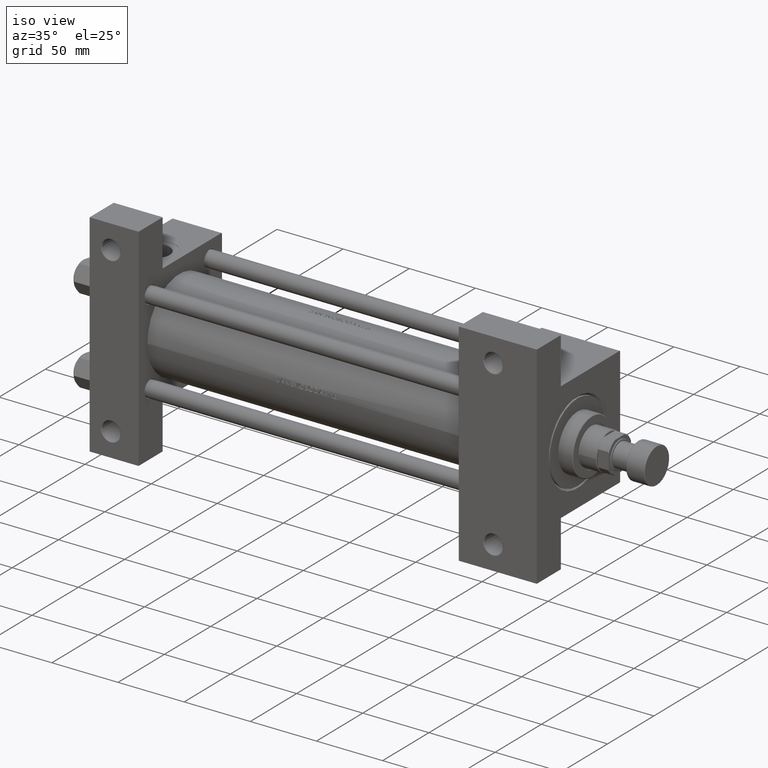
[diagram: clean part render]
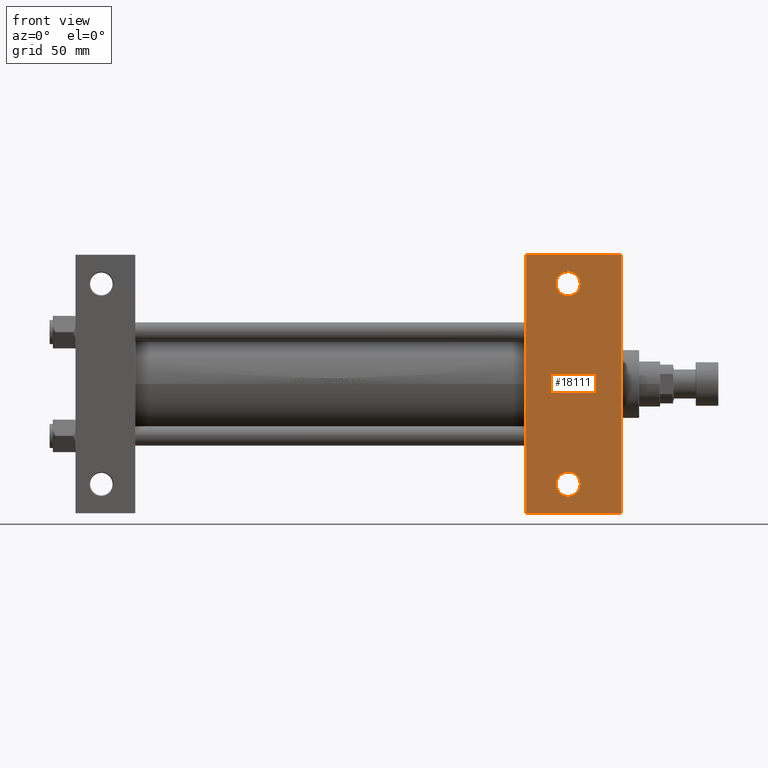
[diagram: tour spotlight — one face highlighted and labeled with its STEP entity id]
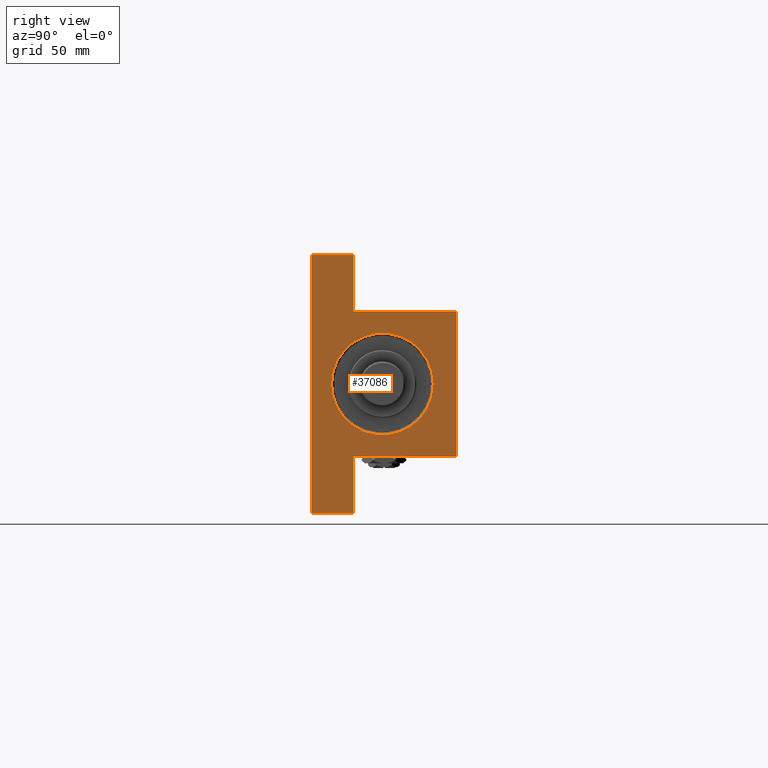
[diagram: tour spotlight — one face highlighted and labeled with its STEP entity id]
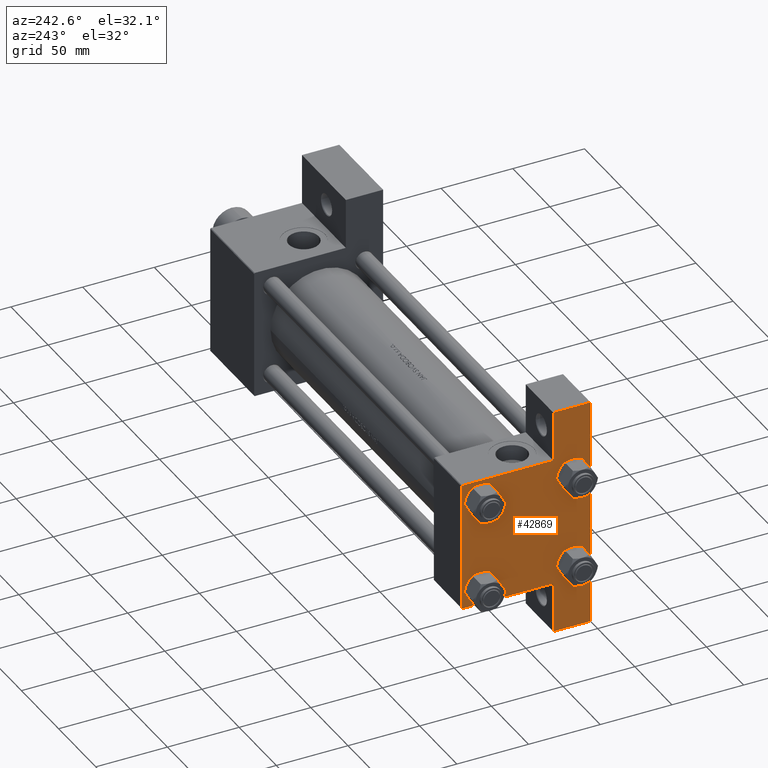
[diagram: tour spotlight — one face highlighted and labeled with its STEP entity id]
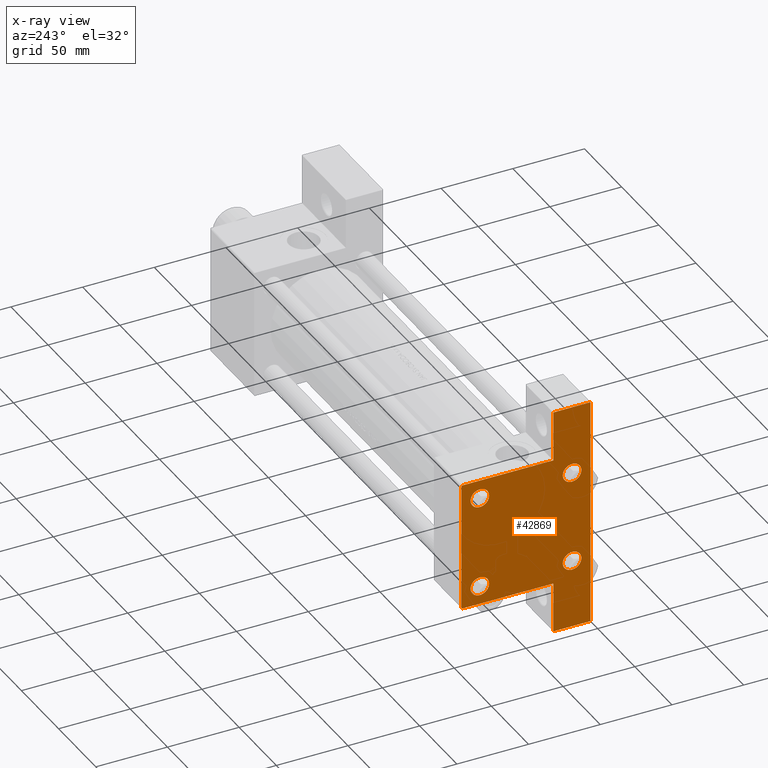
[diagram: x-ray of the same camera — body ghosted, this tour face saturated]
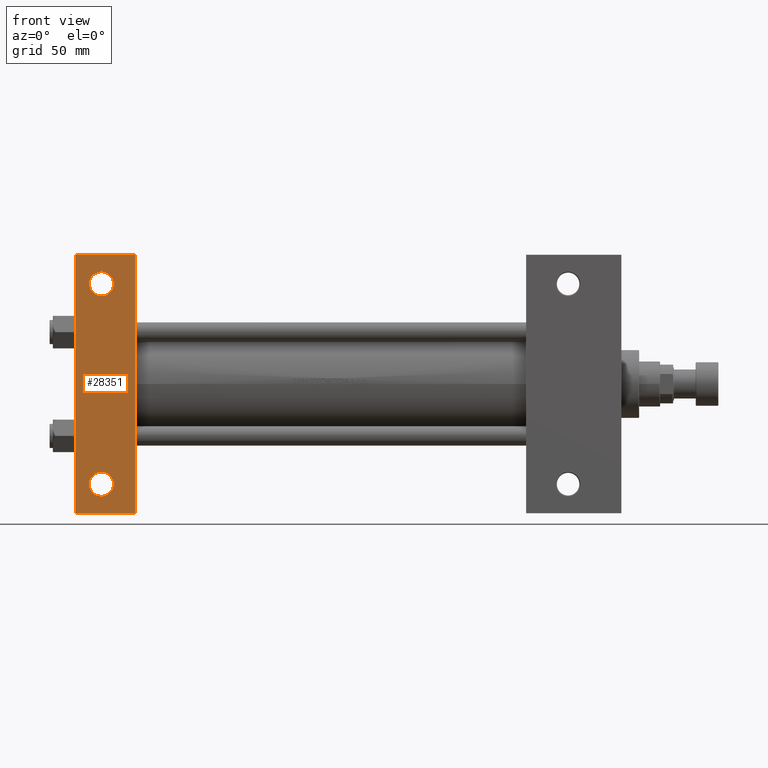
[diagram: tour spotlight — one face highlighted and labeled with its STEP entity id]
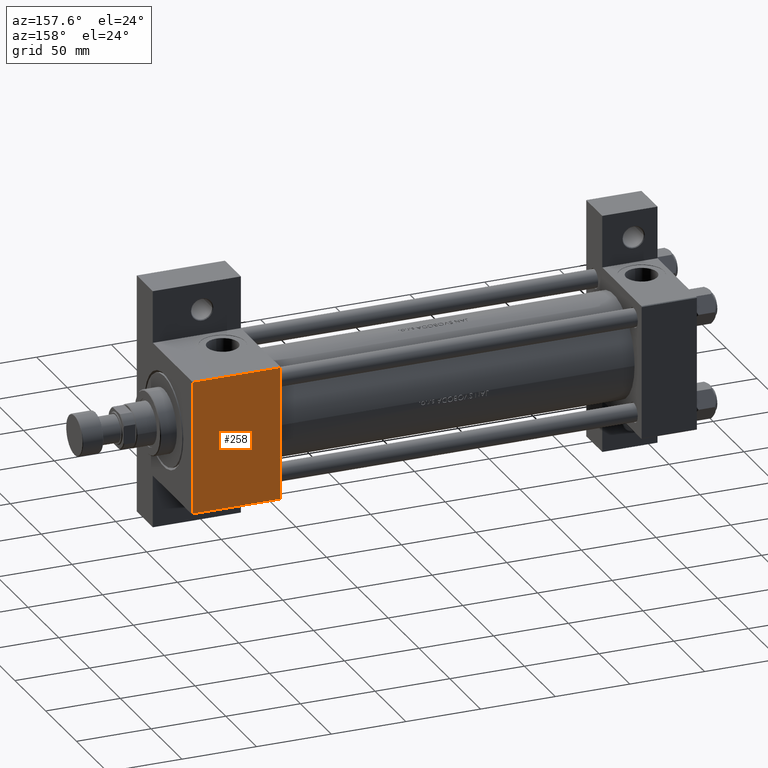
[diagram: tour spotlight — one face highlighted and labeled with its STEP entity id]
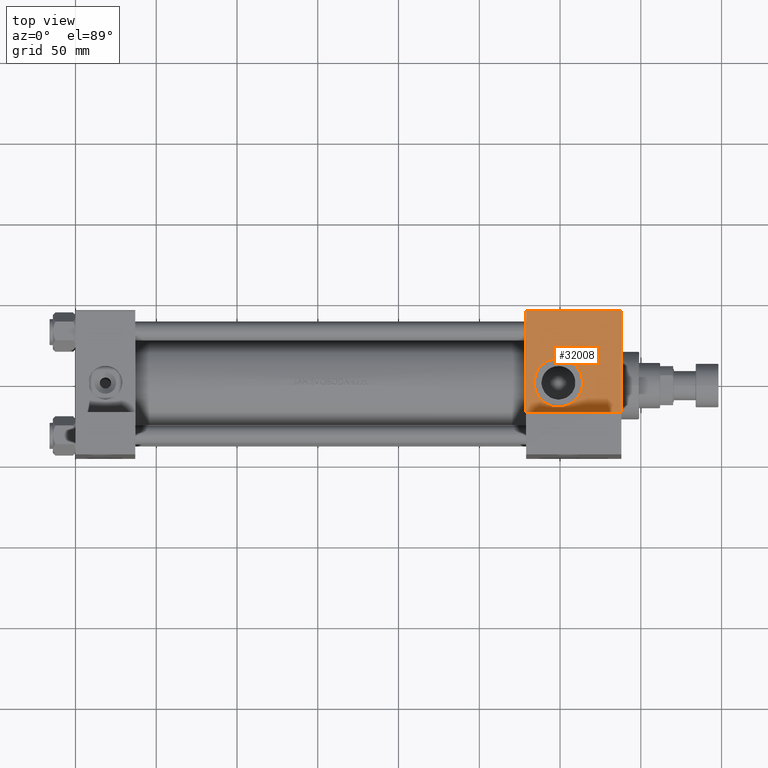
[diagram: tour spotlight — one face highlighted and labeled with its STEP entity id]
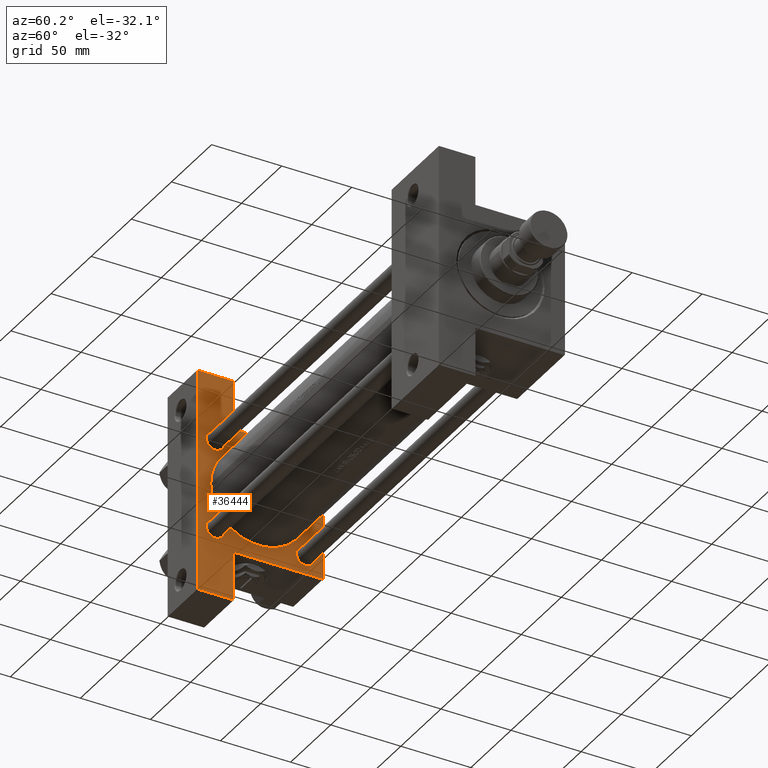
[diagram: tour spotlight — one face highlighted and labeled with its STEP entity id]
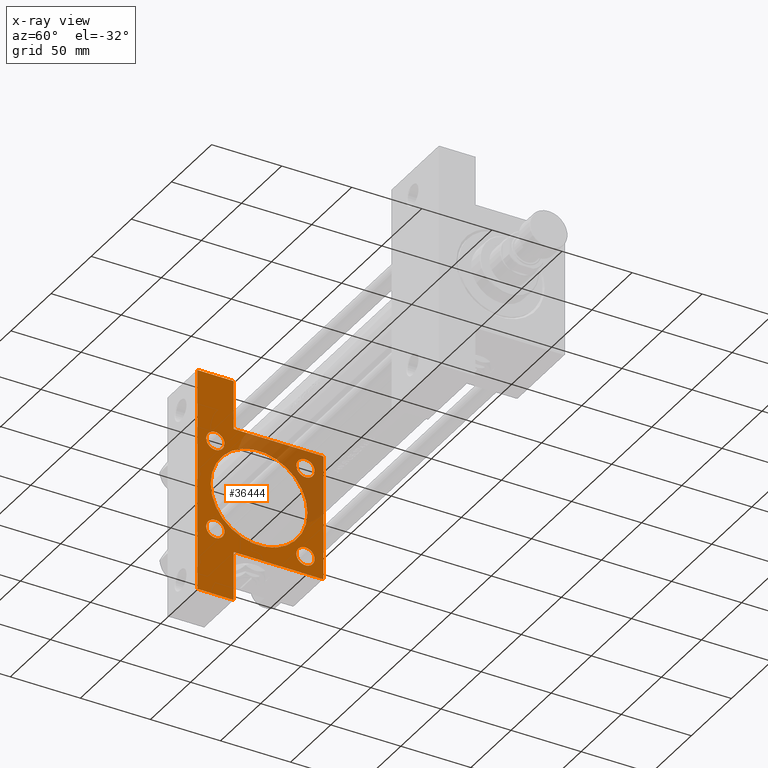
[diagram: x-ray of the same camera — body ghosted, this tour face saturated]
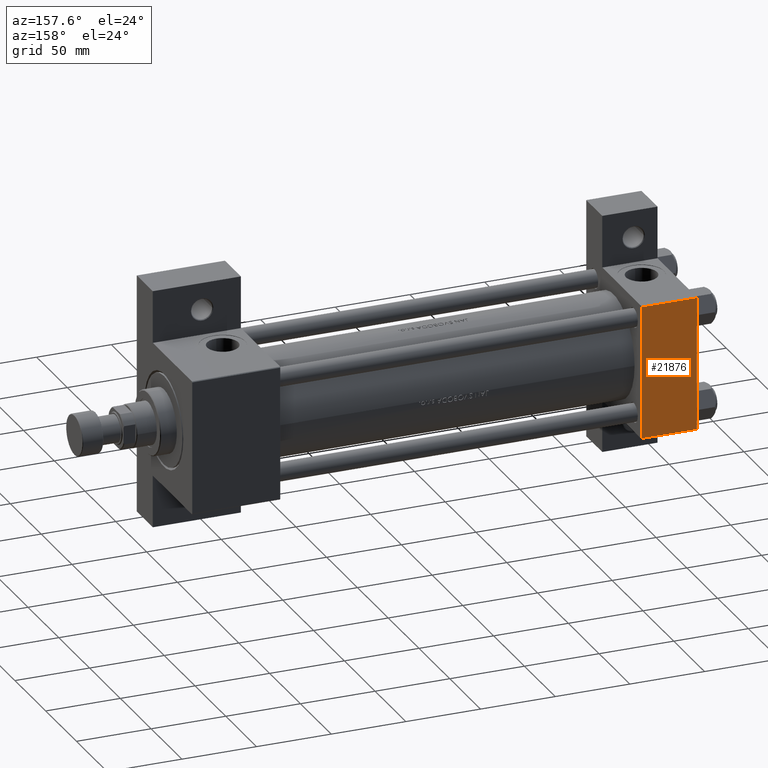
[diagram: tour spotlight — one face highlighted and labeled with its STEP entity id]
A machine part: a face-by-face anatomy tour. The part has 1198 B-rep faces; the first image is the clean iso view, then the 8 largest visible faces are spotlighted one at a time (largest first), each with its STEP entity span.

Face 1 — front view, entity #18111. In plain terms, the highlighted planar face has unit normal (0, -1, 0).
Definition (entity closure, byte-faithful):
#1321 = EDGE_CURVE ( 'NONE', #41824, #39208, #47424, .T. ) ;
#2345 = DIRECTION ( 'NONE',  ( -0.000000000000000000, -0.000000000000000000, 1.000000000000000000 ) ) ;
#2662 = ORIENTED_EDGE ( 'NONE', *, *, #9925, .T. ) ;
#4924 = DIRECTION ( 'NONE',  ( 0.000000000000000000, 0.000000000000000000, -1.000000000000000000 ) ) ;
#5661 = PLANE ( 'NONE',  #33959 ) ;
#5826 = ORIENTED_EDGE ( 'NONE', *, *, #39983, .T. ) ;
#6478 = EDGE_LOOP ( 'NONE', ( #5826, #24625 ) ) ;
#6737 = CARTESIAN_POINT ( 'NONE',  ( 278.9999999999999432, -80.00000000000001421, -45.00000000000000000 ) ) ;
#6751 = CARTESIAN_POINT ( 'NONE',  ( 278.9999999999999432, 45.00000000000001421, -45.00000000000000000 ) ) ;
#6937 = AXIS2_PLACEMENT_3D ( 'NONE', #28535, #12575, #28043 ) ;
#8974 = CARTESIAN_POINT ( 'NONE',  ( 337.9999999999999432, 79.99999999999998579, -45.00000000000000000 ) ) ;
#9925 = EDGE_CURVE ( 'NONE', #36240, #19628, #44864, .T. ) ;
#9989 = CARTESIAN_POINT ( 'NONE',  ( 337.9999999999999432, 45.00000000000001421, -45.00000000000000000 ) ) ;
#10035 = AXIS2_PLACEMENT_3D ( 'NONE', #31610, #43007, #39962 ) ;
#12575 = DIRECTION ( 'NONE',  ( -0.000000000000000000, -0.000000000000000000, 1.000000000000000000 ) ) ;
#14866 = LINE ( 'NONE', #6737, #36738 ) ;
#15801 = LINE ( 'NONE', #27217, #32418 ) ;
#16139 = CARTESIAN_POINT ( 'NONE',  ( 312.4994999999999550, -62.00000000000000000, -45.00000000000000000 ) ) ;
#18111 = ADVANCED_FACE ( 'NONE', ( #36603, #48248, #44696 ), #5661, .T. ) ;
#19628 = VERTEX_POINT ( 'NONE', #40805 ) ;
#20417 = DIRECTION ( 'NONE',  ( -1.000000000000000000, 0.000000000000000000, -0.000000000000000000 ) ) ;
#21653 = CARTESIAN_POINT ( 'NONE',  ( 305.0000000000000000, 62.00000000000000711, -45.00000000000000000 ) ) ;
#23124 = AXIS2_PLACEMENT_3D ( 'NONE', #21653, #2345, #34300 ) ;
#23895 = EDGE_CURVE ( 'NONE', #26860, #36240, #15801, .T. ) ;
#24292 = VERTEX_POINT ( 'NONE', #40312 ) ;
#24392 = ORIENTED_EDGE ( 'NONE', *, *, #23895, .T. ) ;
#24625 = ORIENTED_EDGE ( 'NONE', *, *, #35435, .T. ) ;
#24983 = CARTESIAN_POINT ( 'NONE',  ( 297.5005000000000450, 62.00000000000000711, -45.00000000000000000 ) ) ;
#25316 = CARTESIAN_POINT ( 'NONE',  ( 312.4994999999999550, 62.00000000000000711, -45.00000000000000000 ) ) ;
#25600 = AXIS2_PLACEMENT_3D ( 'NONE', #47483, #47980, #39900 ) ;
#25637 = DIRECTION ( 'NONE',  ( 0.000000000000000000, -1.000000000000000000, 0.000000000000000000 ) ) ;
#26051 = LINE ( 'NONE', #6751, #37234 ) ;
#26860 = VERTEX_POINT ( 'NONE', #27622 ) ;
#27217 = CARTESIAN_POINT ( 'NONE',  ( 278.9999999999999432, 79.99999999999995737, -45.00000000000000000 ) ) ;
#27622 = CARTESIAN_POINT ( 'NONE',  ( 278.9999999999999432, 79.99999999999995737, -45.00000000000000000 ) ) ;
#27996 = CIRCLE ( 'NONE', #6937, 7.499499999999992284 ) ;
#28043 = DIRECTION ( 'NONE',  ( -1.000000000000000000, 0.000000000000000000, 0.000000000000000000 ) ) ;
#28535 = CARTESIAN_POINT ( 'NONE',  ( 304.9999999999999432, -62.00000000000000000, -45.00000000000000000 ) ) ;
#28630 = EDGE_LOOP ( 'NONE', ( #44891, #24392, #2662, #32613 ) ) ;
#31610 = CARTESIAN_POINT ( 'NONE',  ( 304.9999999999999432, -62.00000000000000000, -45.00000000000000000 ) ) ;
#32011 = DIRECTION ( 'NONE',  ( 1.000000000000000000, 4.704334850106595794E-16, 0.000000000000000000 ) ) ;
#32150 = EDGE_CURVE ( 'NONE', #19628, #24292, #14866, .T. ) ;
#32418 = VECTOR ( 'NONE', #32011, 1000.000000000000000 ) ;
#32613 = ORIENTED_EDGE ( 'NONE', *, *, #32150, .T. ) ;
#32694 = CIRCLE ( 'NONE', #10035, 7.499499999999992284 ) ;
#33959 = AXIS2_PLACEMENT_3D ( 'NONE', #9989, #4924, #20417 ) ;
#34135 = DIRECTION ( 'NONE',  ( 0.000000000000000000, -1.000000000000000000, 0.000000000000000000 ) ) ;
#34152 = EDGE_LOOP ( 'NONE', ( #45328, #41697 ) ) ;
#34300 = DIRECTION ( 'NONE',  ( -1.000000000000000000, 0.000000000000000000, 0.000000000000000000 ) ) ;
#35435 = EDGE_CURVE ( 'NONE', #40857, #46505, #32694, .T. ) ;
#36141 = CARTESIAN_POINT ( 'NONE',  ( 297.5004999999999313, -62.00000000000000000, -45.00000000000000000 ) ) ;
#36240 = VERTEX_POINT ( 'NONE', #8974 ) ;
#36603 = FACE_BOUND ( 'NONE', #34152, .T. ) ;
#36738 = VECTOR ( 'NONE', #48811, 1000.000000000000000 ) ;
#37234 = VECTOR ( 'NONE', #34135, 1000.000000000000000 ) ;
#38112 = EDGE_CURVE ( 'NONE', #39208, #41824, #44116, .T. ) ;
#39208 = VERTEX_POINT ( 'NONE', #24983 ) ;
#39900 = DIRECTION ( 'NONE',  ( -1.000000000000000000, 0.000000000000000000, 0.000000000000000000 ) ) ;
#39962 = DIRECTION ( 'NONE',  ( -1.000000000000000000, 0.000000000000000000, 0.000000000000000000 ) ) ;
#39983 = EDGE_CURVE ( 'NONE', #46505, #40857, #27996, .T. ) ;
#40312 = CARTESIAN_POINT ( 'NONE',  ( 278.9999999999999432, -80.00000000000001421, -45.00000000000000000 ) ) ;
#40805 = CARTESIAN_POINT ( 'NONE',  ( 337.9999999999999432, -80.00000000000004263, -45.00000000000000000 ) ) ;
#40857 = VERTEX_POINT ( 'NONE', #16139 ) ;
#41135 = VECTOR ( 'NONE', #25637, 1000.000000000000000 ) ;
#41697 = ORIENTED_EDGE ( 'NONE', *, *, #1321, .T. ) ;
#41824 = VERTEX_POINT ( 'NONE', #25316 ) ;
#43007 = DIRECTION ( 'NONE',  ( -0.000000000000000000, -0.000000000000000000, 1.000000000000000000 ) ) ;
#44116 = CIRCLE ( 'NONE', #23124, 7.499499999999937216 ) ;
#44374 = CARTESIAN_POINT ( 'NONE',  ( 337.9999999999999432, 45.00000000000001421, -45.00000000000000000 ) ) ;
#44696 = FACE_OUTER_BOUND ( 'NONE', #28630, .T. ) ;
#44864 = LINE ( 'NONE', #44374, #41135 ) ;
#44891 = ORIENTED_EDGE ( 'NONE', *, *, #46227, .F. ) ;
#45328 = ORIENTED_EDGE ( 'NONE', *, *, #38112, .T. ) ;
#46227 = EDGE_CURVE ( 'NONE', #26860, #24292, #26051, .T. ) ;
#46505 = VERTEX_POINT ( 'NONE', #36141 ) ;
#47424 = CIRCLE ( 'NONE', #25600, 7.499499999999937216 ) ;
#47483 = CARTESIAN_POINT ( 'NONE',  ( 305.0000000000000000, 62.00000000000000711, -45.00000000000000000 ) ) ;
#47980 = DIRECTION ( 'NONE',  ( -0.000000000000000000, -0.000000000000000000, 1.000000000000000000 ) ) ;
#48248 = FACE_BOUND ( 'NONE', #6478, .T. ) ;
#48811 = DIRECTION ( 'NONE',  ( -1.000000000000000000, 4.704334850106595794E-16, -0.000000000000000000 ) ) ;

Face 2 — right view, entity #37086. In plain terms, the highlighted planar face has unit normal (-1, 0, -0).
Definition (entity closure, byte-faithful):
#963 = CARTESIAN_POINT ( 'NONE',  ( 337.9999999999999432, 44.49999999999995737, 45.00000000000000000 ) ) ;
#1416 = CARTESIAN_POINT ( 'NONE',  ( 337.9999999999999432, -45.00000000000000000, 44.49999999999998579 ) ) ;
#2028 = ORIENTED_EDGE ( 'NONE', *, *, #39639, .T. ) ;
#2048 = VECTOR ( 'NONE', #20184, 1000.000000000000000 ) ;
#2426 = ORIENTED_EDGE ( 'NONE', *, *, #9047, .T. ) ;
#2751 = CARTESIAN_POINT ( 'NONE',  ( 337.9999999999999432, 44.49999999999995737, 45.00000000000000000 ) ) ;
#4411 = FACE_BOUND ( 'NONE', #11664, .T. ) ;
#4481 = DIRECTION ( 'NONE',  ( 0.000000000000000000, -1.000000000000000000, 0.000000000000000000 ) ) ;
#5293 = CARTESIAN_POINT ( 'NONE',  ( 337.9999999999999432, -80.00000000000004263, -19.00000000000000000 ) ) ;
#5495 = ORIENTED_EDGE ( 'NONE', *, *, #22359, .T. ) ;
#5924 = CARTESIAN_POINT ( 'NONE',  ( 337.9999999999999432, 45.00000000000001421, 45.00000000000000000 ) ) ;
#6123 = CARTESIAN_POINT ( 'NONE',  ( 337.9999999999999432, 0.000000000000000000, -1.000000000000000888 ) ) ;
#6430 = CIRCLE ( 'NONE', #12154, 31.49999999999997158 ) ;
#7097 = CARTESIAN_POINT ( 'NONE',  ( 337.9999999999999432, -80.00000000000004263, -19.00000000000000000 ) ) ;
#7237 = AXIS2_PLACEMENT_3D ( 'NONE', #6123, #9696, #10195 ) ;
#8974 = CARTESIAN_POINT ( 'NONE',  ( 337.9999999999999432, 79.99999999999998579, -45.00000000000000000 ) ) ;
#9047 = EDGE_CURVE ( 'NONE', #10651, #40040, #19755, .T. ) ;
#9696 = DIRECTION ( 'NONE',  ( -1.000000000000000000, -0.000000000000000000, -0.000000000000000000 ) ) ;
#9747 = DIRECTION ( 'NONE',  ( 0.000000000000000000, -1.000000000000000000, -1.541976423090495140E-16 ) ) ;
#9925 = EDGE_CURVE ( 'NONE', #36240, #19628, #44864, .T. ) ;
#10195 = DIRECTION ( 'NONE',  ( 0.000000000000000000, 0.000000000000000000, 1.000000000000000000 ) ) ;
#10203 = CARTESIAN_POINT ( 'NONE',  ( 337.9999999999999432, 0.000000000000000000, -1.000000000000000888 ) ) ;
#10651 = VERTEX_POINT ( 'NONE', #1416 ) ;
#11229 = ORIENTED_EDGE ( 'NONE', *, *, #21636, .T. ) ;
#11364 = EDGE_CURVE ( 'NONE', #48861, #34864, #12612, .T. ) ;
#11664 = EDGE_LOOP ( 'NONE', ( #11229, #5495 ) ) ;
#12154 = AXIS2_PLACEMENT_3D ( 'NONE', #10203, #36824, #18061 ) ;
#12540 = DIRECTION ( 'NONE',  ( -1.000000000000000000, 0.000000000000000000, -0.000000000000000000 ) ) ;
#12612 = LINE ( 'NONE', #23795, #40351 ) ;
#12656 = ORIENTED_EDGE ( 'NONE', *, *, #9925, .F. ) ;
#12819 = LINE ( 'NONE', #36136, #2048 ) ;
#13462 = ORIENTED_EDGE ( 'NONE', *, *, #30858, .T. ) ;
#13851 = EDGE_CURVE ( 'NONE', #25937, #49397, #33562, .T. ) ;
#16457 = DIRECTION ( 'NONE',  ( 0.000000000000000000, 7.709882115452478166E-17, -1.000000000000000000 ) ) ;
#17229 = LINE ( 'NONE', #5293, #45596 ) ;
#17998 = VERTEX_POINT ( 'NONE', #49806 ) ;
#18061 = DIRECTION ( 'NONE',  ( 0.000000000000000000, 0.000000000000000000, 1.000000000000000000 ) ) ;
#18669 = LINE ( 'NONE', #49065, #29600 ) ;
#19205 = VECTOR ( 'NONE', #16457, 1000.000000000000000 ) ;
#19628 = VERTEX_POINT ( 'NONE', #40805 ) ;
#19755 = LINE ( 'NONE', #39021, #19205 ) ;
#19943 = CARTESIAN_POINT ( 'NONE',  ( 337.9999999999999432, 79.99999999999998579, -19.00000000000000000 ) ) ;
#20184 = DIRECTION ( 'NONE',  ( 0.000000000000000000, 0.000000000000000000, -1.000000000000000000 ) ) ;
#20401 = FACE_OUTER_BOUND ( 'NONE', #46872, .T. ) ;
#21168 = CARTESIAN_POINT ( 'NONE',  ( 337.9999999999999432, -44.99999999999999289, -18.99999999999997513 ) ) ;
#21636 = EDGE_CURVE ( 'NONE', #44817, #22362, #35600, .T. ) ;
#22222 = CARTESIAN_POINT ( 'NONE',  ( 337.9999999999999432, 45.00000000000001421, 45.00000000000000000 ) ) ;
#22359 = EDGE_CURVE ( 'NONE', #22362, #44817, #6430, .T. ) ;
#22362 = VERTEX_POINT ( 'NONE', #41132 ) ;
#22544 = ORIENTED_EDGE ( 'NONE', *, *, #13851, .T. ) ;
#23795 = CARTESIAN_POINT ( 'NONE',  ( 337.9999999999999432, 79.99999999999998579, -19.00000000000000000 ) ) ;
#25100 = DIRECTION ( 'NONE',  ( -0.000000000000000000, -1.000000000000000000, -0.000000000000000000 ) ) ;
#25450 = CARTESIAN_POINT ( 'NONE',  ( 337.9999999999999432, 0.000000000000000000, -32.49999999999997158 ) ) ;
#25602 = CARTESIAN_POINT ( 'NONE',  ( 337.9999999999999432, -45.00000000000000000, 44.49999999999998579 ) ) ;
#25637 = DIRECTION ( 'NONE',  ( 0.000000000000000000, -1.000000000000000000, 0.000000000000000000 ) ) ;
#25768 = ORIENTED_EDGE ( 'NONE', *, *, #33876, .T. ) ;
#25937 = VERTEX_POINT ( 'NONE', #963 ) ;
#27067 = VECTOR ( 'NONE', #29386, 1000.000000000000114 ) ;
#28010 = DIRECTION ( 'NONE',  ( -0.000000000000000000, 0.000000000000000000, 1.000000000000000000 ) ) ;
#28178 = ORIENTED_EDGE ( 'NONE', *, *, #39911, .F. ) ;
#28220 = VERTEX_POINT ( 'NONE', #7097 ) ;
#29366 = EDGE_CURVE ( 'NONE', #17998, #34864, #29812, .T. ) ;
#29386 = DIRECTION ( 'NONE',  ( -0.000000000000000000, -0.7071067811865474617, -0.7071067811865474617 ) ) ;
#29600 = VECTOR ( 'NONE', #48569, 1000.000000000000000 ) ;
#29812 = LINE ( 'NONE', #22222, #48800 ) ;
#30858 = EDGE_CURVE ( 'NONE', #40040, #28220, #17229, .T. ) ;
#31662 = EDGE_CURVE ( 'NONE', #49397, #10651, #43166, .T. ) ;
#31807 = PLANE ( 'NONE',  #43290 ) ;
#33562 = LINE ( 'NONE', #5924, #36689 ) ;
#33699 = DIRECTION ( 'NONE',  ( 0.000000000000000000, -0.7071067811865474617, 0.7071067811865474617 ) ) ;
#33876 = EDGE_CURVE ( 'NONE', #17998, #25937, #36755, .T. ) ;
#34864 = VERTEX_POINT ( 'NONE', #38076 ) ;
#35600 = CIRCLE ( 'NONE', #7237, 31.49999999999997158 ) ;
#36136 = CARTESIAN_POINT ( 'NONE',  ( 337.9999999999999432, 79.99999999999998579, -19.00000000000000000 ) ) ;
#36240 = VERTEX_POINT ( 'NONE', #8974 ) ;
#36689 = VECTOR ( 'NONE', #9747, 1000.000000000000000 ) ;
#36755 = LINE ( 'NONE', #2751, #43294 ) ;
#36824 = DIRECTION ( 'NONE',  ( -1.000000000000000000, -0.000000000000000000, -0.000000000000000000 ) ) ;
#37086 = ADVANCED_FACE ( 'NONE', ( #4411, #20401 ), #31807, .F. ) ;
#38076 = CARTESIAN_POINT ( 'NONE',  ( 337.9999999999999432, 44.99999999999992895, -19.00000000000000000 ) ) ;
#39021 = CARTESIAN_POINT ( 'NONE',  ( 337.9999999999999432, -45.00000000000000000, 44.99999999999998579 ) ) ;
#39639 = EDGE_CURVE ( 'NONE', #28220, #19628, #18669, .T. ) ;
#39911 = EDGE_CURVE ( 'NONE', #48861, #36240, #12819, .T. ) ;
#40040 = VERTEX_POINT ( 'NONE', #21168 ) ;
#40351 = VECTOR ( 'NONE', #4481, 1000.000000000000000 ) ;
#40805 = CARTESIAN_POINT ( 'NONE',  ( 337.9999999999999432, -80.00000000000004263, -45.00000000000000000 ) ) ;
#41132 = CARTESIAN_POINT ( 'NONE',  ( 337.9999999999999432, 3.857637417314158745E-15, 30.49999999999997158 ) ) ;
#41135 = VECTOR ( 'NONE', #25637, 1000.000000000000000 ) ;
#43166 = LINE ( 'NONE', #25602, #27067 ) ;
#43290 = AXIS2_PLACEMENT_3D ( 'NONE', #47241, #12540, #28010 ) ;
#43294 = VECTOR ( 'NONE', #33699, 1000.000000000000114 ) ;
#43397 = ORIENTED_EDGE ( 'NONE', *, *, #31662, .T. ) ;
#44374 = CARTESIAN_POINT ( 'NONE',  ( 337.9999999999999432, 45.00000000000001421, -45.00000000000000000 ) ) ;
#44817 = VERTEX_POINT ( 'NONE', #25450 ) ;
#44864 = LINE ( 'NONE', #44374, #41135 ) ;
#45257 = DIRECTION ( 'NONE',  ( 0.000000000000000000, 0.000000000000000000, -1.000000000000000000 ) ) ;
#45596 = VECTOR ( 'NONE', #25100, 1000.000000000000000 ) ;
#46872 = EDGE_LOOP ( 'NONE', ( #47328, #25768, #22544, #43397, #2426, #13462, #2028, #12656, #28178, #48031 ) ) ;
#47241 = CARTESIAN_POINT ( 'NONE',  ( 337.9999999999999432, 0.000000000000000000, 0.000000000000000000 ) ) ;
#47328 = ORIENTED_EDGE ( 'NONE', *, *, #29366, .F. ) ;
#48031 = ORIENTED_EDGE ( 'NONE', *, *, #11364, .T. ) ;
#48569 = DIRECTION ( 'NONE',  ( 0.000000000000000000, 0.000000000000000000, -1.000000000000000000 ) ) ;
#48800 = VECTOR ( 'NONE', #45257, 1000.000000000000000 ) ;
#48861 = VERTEX_POINT ( 'NONE', #19943 ) ;
#49065 = CARTESIAN_POINT ( 'NONE',  ( 337.9999999999999432, -80.00000000000004263, -19.00000000000000000 ) ) ;
#49207 = CARTESIAN_POINT ( 'NONE',  ( 337.9999999999999432, -44.49999999999997158, 44.99999999999998579 ) ) ;
#49397 = VERTEX_POINT ( 'NONE', #49207 ) ;
#49806 = CARTESIAN_POINT ( 'NONE',  ( 337.9999999999999432, 45.00000000000001421, 44.49999999999994316 ) ) ;

Face 3 — auxiliary view, entity #42869. An x-ray twin of the same camera follows (body ghosted, this face saturated) — the face is partly hidden behind the body. In plain terms, the highlighted planar face has unit normal (-1, 0, -0).
Definition (entity closure, byte-faithful):
#46 = DIRECTION ( 'NONE',  ( 1.000000000000000000, -0.000000000000000000, 0.000000000000000000 ) ) ;
#504 = CARTESIAN_POINT ( 'NONE',  ( 0.000000000000000000, -32.14999999999997726, -32.15000000000001279 ) ) ;
#777 = ORIENTED_EDGE ( 'NONE', *, *, #26997, .F. ) ;
#1428 = CARTESIAN_POINT ( 'NONE',  ( 0.000000000000000000, 32.14999999999999147, 32.15000000000000568 ) ) ;
#1510 = VERTEX_POINT ( 'NONE', #30915 ) ;
#1536 = ORIENTED_EDGE ( 'NONE', *, *, #26803, .F. ) ;
#1803 = CARTESIAN_POINT ( 'NONE',  ( 3.977209754999747208E-16, -79.99999999999998579, -44.99999999999997868 ) ) ;
#1987 = EDGE_CURVE ( 'NONE', #43820, #18816, #21574, .T. ) ;
#2402 = ORIENTED_EDGE ( 'NONE', *, *, #7395, .T. ) ;
#2456 = ORIENTED_EDGE ( 'NONE', *, *, #37658, .T. ) ;
#2588 = PLANE ( 'NONE',  #32942 ) ;
#3080 = DIRECTION ( 'NONE',  ( 0.000000000000000000, 0.000000000000000000, 1.000000000000000000 ) ) ;
#3783 = LINE ( 'NONE', #19267, #7678 ) ;
#3960 = EDGE_LOOP ( 'NONE', ( #30106, #19897 ) ) ;
#4050 = VECTOR ( 'NONE', #16082, 1000.000000000000000 ) ;
#4170 = CARTESIAN_POINT ( 'NONE',  ( 0.000000000000000000, 32.14999999999999147, -38.64999999999998437 ) ) ;
#4266 = CIRCLE ( 'NONE', #35885, 6.499999999999977796 ) ;
#4295 = DIRECTION ( 'NONE',  ( 0.000000000000000000, 0.7071067811865474617, -0.7071067811865474617 ) ) ;
#4771 = CARTESIAN_POINT ( 'NONE',  ( -0.000000000000000000, -44.75000000000029843, 44.74999999999967315 ) ) ;
#5294 = ORIENTED_EDGE ( 'NONE', *, *, #31803, .T. ) ;
#5301 = EDGE_CURVE ( 'NONE', #44498, #31484, #40954, .T. ) ;
#6083 = ORIENTED_EDGE ( 'NONE', *, *, #1987, .T. ) ;
#6149 = FACE_BOUND ( 'NONE', #8787, .T. ) ;
#6503 = CIRCLE ( 'NONE', #12187, 6.499999999999977796 ) ;
#7106 = EDGE_CURVE ( 'NONE', #31484, #44498, #41024, .T. ) ;
#7395 = EDGE_CURVE ( 'NONE', #36486, #10311, #29182, .T. ) ;
#7411 = DIRECTION ( 'NONE',  ( 0.000000000000000000, 0.000000000000000000, 1.000000000000000000 ) ) ;
#7519 = DIRECTION ( 'NONE',  ( 0.000000000000000000, 7.709882115452476934E-17, -1.000000000000000000 ) ) ;
#7678 = VECTOR ( 'NONE', #42578, 1000.000000000000000 ) ;
#7832 = AXIS2_PLACEMENT_3D ( 'NONE', #42155, #46, #7411 ) ;
#8303 = EDGE_CURVE ( 'NONE', #37553, #12067, #47383, .T. ) ;
#8336 = CARTESIAN_POINT ( 'NONE',  ( 0.000000000000000000, 32.14999999999999147, -32.15000000000000568 ) ) ;
#8374 = DIRECTION ( 'NONE',  ( 0.000000000000000000, 0.000000000000000000, 1.000000000000000000 ) ) ;
#8559 = CARTESIAN_POINT ( 'NONE',  ( 0.000000000000000000, 32.14999999999999147, 25.65000000000002700 ) ) ;
#8787 = EDGE_LOOP ( 'NONE', ( #9542, #41077 ) ) ;
#8840 = VERTEX_POINT ( 'NONE', #27686 ) ;
#9167 = ORIENTED_EDGE ( 'NONE', *, *, #27489, .T. ) ;
#9248 = CARTESIAN_POINT ( 'NONE',  ( 0.000000000000000000, 32.14999999999999147, 38.64999999999999147 ) ) ;
#9542 = ORIENTED_EDGE ( 'NONE', *, *, #7106, .T. ) ;
#9861 = VECTOR ( 'NONE', #47974, 1000.000000000000000 ) ;
#9978 = CARTESIAN_POINT ( 'NONE',  ( 0.000000000000000000, 0.000000000000000000, 0.000000000000000000 ) ) ;
#10264 = DIRECTION ( 'NONE',  ( 0.000000000000000000, 0.000000000000000000, 1.000000000000000000 ) ) ;
#10311 = VERTEX_POINT ( 'NONE', #41017 ) ;
#10370 = ORIENTED_EDGE ( 'NONE', *, *, #26864, .T. ) ;
#10462 = DIRECTION ( 'NONE',  ( 0.000000000000000000, 0.000000000000000000, 1.000000000000000000 ) ) ;
#10518 = VERTEX_POINT ( 'NONE', #46807 ) ;
#10952 = CARTESIAN_POINT ( 'NONE',  ( 0.000000000000000000, -32.14999999999997726, 38.65000000000003411 ) ) ;
#11018 = CARTESIAN_POINT ( 'NONE',  ( 0.000000000000000000, -32.14999999999997726, -32.15000000000001279 ) ) ;
#11543 = DIRECTION ( 'NONE',  ( -2.767091054814098392E-16, -1.000000000000000000, 0.000000000000000000 ) ) ;
#11842 = AXIS2_PLACEMENT_3D ( 'NONE', #39228, #16157, #46055 ) ;
#12067 = VERTEX_POINT ( 'NONE', #1803 ) ;
#12187 = AXIS2_PLACEMENT_3D ( 'NONE', #11018, #44722, #10264 ) ;
#12408 = LINE ( 'NONE', #4771, #33546 ) ;
#13557 = VECTOR ( 'NONE', #28393, 1000.000000000000000 ) ;
#13751 = ORIENTED_EDGE ( 'NONE', *, *, #36461, .T. ) ;
#14220 = LINE ( 'NONE', #22855, #27969 ) ;
#14271 = DIRECTION ( 'NONE',  ( -0.000000000000000000, 0.000000000000000000, 1.000000000000000000 ) ) ;
#14704 = CIRCLE ( 'NONE', #43040, 6.499999999999977796 ) ;
#14767 = DIRECTION ( 'NONE',  ( 1.000000000000000000, -0.000000000000000000, 0.000000000000000000 ) ) ;
#14796 = CARTESIAN_POINT ( 'NONE',  ( 0.000000000000000000, -44.49999999999995737, 45.00000000000000000 ) ) ;
#15184 = CARTESIAN_POINT ( 'NONE',  ( 0.000000000000000000, -32.14999999999997726, 32.15000000000001279 ) ) ;
#15345 = CARTESIAN_POINT ( 'NONE',  ( 1.999206976185762692E-14, 80.00000000000002842, -18.99999999999999645 ) ) ;
#15548 = VECTOR ( 'NONE', #7519, 1000.000000000000000 ) ;
#15896 = VERTEX_POINT ( 'NONE', #42326 ) ;
#15996 = DIRECTION ( 'NONE',  ( 1.000000000000000000, -0.000000000000000000, 0.000000000000000000 ) ) ;
#16082 = DIRECTION ( 'NONE',  ( 0.000000000000000000, -1.000000000000000000, -1.541976423090495387E-16 ) ) ;
#16157 = DIRECTION ( 'NONE',  ( 1.000000000000000000, -0.000000000000000000, 0.000000000000000000 ) ) ;
#16670 = DIRECTION ( 'NONE',  ( 0.000000000000000000, 0.000000000000000000, 1.000000000000000000 ) ) ;
#18816 = VERTEX_POINT ( 'NONE', #31333 ) ;
#18941 = AXIS2_PLACEMENT_3D ( 'NONE', #15184, #42043, #46084 ) ;
#19267 = CARTESIAN_POINT ( 'NONE',  ( 1.999206976185762377E-14, 80.00000000000002842, 31.93132631298737678 ) ) ;
#19897 = ORIENTED_EDGE ( 'NONE', *, *, #47349, .T. ) ;
#20019 = DIRECTION ( 'NONE',  ( -0.000000000000000000, 0.7071067811865425767, 0.7071067811865524577 ) ) ;
#20640 = VERTEX_POINT ( 'NONE', #27726 ) ;
#20842 = DIRECTION ( 'NONE',  ( 0.000000000000000000, 0.000000000000000000, -1.000000000000000000 ) ) ;
#20880 = CARTESIAN_POINT ( 'NONE',  ( 3.977209754999744743E-16, -79.99999999999997158, -18.99999999999999645 ) ) ;
#21379 = CARTESIAN_POINT ( 'NONE',  ( 0.000000000000000000, -32.14999999999997726, 32.15000000000001279 ) ) ;
#21574 = CIRCLE ( 'NONE', #11842, 6.499999999999977796 ) ;
#22012 = VERTEX_POINT ( 'NONE', #40936 ) ;
#22398 = CARTESIAN_POINT ( 'NONE',  ( 0.000000000000000000, 44.49999999999998579, 45.00000000000001421 ) ) ;
#22855 = CARTESIAN_POINT ( 'NONE',  ( 0.000000000000000000, 44.74999999999999289, 44.74999999999999289 ) ) ;
#23528 = CARTESIAN_POINT ( 'NONE',  ( 0.000000000000000000, -45.00000000000000711, 45.00000000000000000 ) ) ;
#23680 = AXIS2_PLACEMENT_3D ( 'NONE', #21379, #14767, #10462 ) ;
#25362 = EDGE_CURVE ( 'NONE', #27834, #10311, #41713, .T. ) ;
#25664 = VERTEX_POINT ( 'NONE', #10952 ) ;
#25957 = FACE_BOUND ( 'NONE', #39480, .T. ) ;
#26421 = CARTESIAN_POINT ( 'NONE',  ( 3.977209754999747208E-16, -79.99999999999997158, 31.93132631298740165 ) ) ;
#26803 = EDGE_CURVE ( 'NONE', #22012, #1510, #43677, .T. ) ;
#26813 = LINE ( 'NONE', #23528, #15548 ) ;
#26864 = EDGE_CURVE ( 'NONE', #18816, #43820, #14704, .T. ) ;
#26997 = EDGE_CURVE ( 'NONE', #15896, #22012, #26813, .T. ) ;
#27489 = EDGE_CURVE ( 'NONE', #8840, #25664, #45484, .T. ) ;
#27686 = CARTESIAN_POINT ( 'NONE',  ( 0.000000000000000000, -32.14999999999997726, 25.64999999999999147 ) ) ;
#27726 = CARTESIAN_POINT ( 'NONE',  ( 0.000000000000000000, -32.14999999999997726, -25.65000000000003411 ) ) ;
#27834 = VERTEX_POINT ( 'NONE', #45872 ) ;
#27877 = DIRECTION ( 'NONE',  ( 1.000000000000000000, -0.000000000000000000, 0.000000000000000000 ) ) ;
#27969 = VECTOR ( 'NONE', #4295, 1000.000000000000114 ) ;
#28393 = DIRECTION ( 'NONE',  ( 0.000000000000000000, -1.000000000000000000, -1.541976423090495633E-16 ) ) ;
#29182 = LINE ( 'NONE', #40844, #42661 ) ;
#29584 = EDGE_CURVE ( 'NONE', #1510, #12067, #34242, .T. ) ;
#29753 = EDGE_CURVE ( 'NONE', #20640, #10518, #4266, .T. ) ;
#30106 = ORIENTED_EDGE ( 'NONE', *, *, #29753, .T. ) ;
#30202 = VECTOR ( 'NONE', #33748, 1000.000000000000000 ) ;
#30469 = AXIS2_PLACEMENT_3D ( 'NONE', #1428, #40234, #16670 ) ;
#30915 = CARTESIAN_POINT ( 'NONE',  ( 3.977209754999747208E-16, -79.99999999999998579, -18.99999999999999645 ) ) ;
#31333 = CARTESIAN_POINT ( 'NONE',  ( 0.000000000000000000, 32.14999999999999147, -25.65000000000002700 ) ) ;
#31484 = VERTEX_POINT ( 'NONE', #9248 ) ;
#31556 = VERTEX_POINT ( 'NONE', #14796 ) ;
#31803 = EDGE_CURVE ( 'NONE', #25664, #8840, #38377, .T. ) ;
#32942 = AXIS2_PLACEMENT_3D ( 'NONE', #9978, #33537, #14271 ) ;
#33537 = DIRECTION ( 'NONE',  ( -1.000000000000000000, 0.000000000000000000, -0.000000000000000000 ) ) ;
#33546 = VECTOR ( 'NONE', #20019, 1000.000000000000114 ) ;
#33748 = DIRECTION ( 'NONE',  ( 0.000000000000000000, -1.734723475976806848E-16, -1.000000000000000000 ) ) ;
#33783 = ORIENTED_EDGE ( 'NONE', *, *, #38609, .T. ) ;
#34027 = ORIENTED_EDGE ( 'NONE', *, *, #29584, .F. ) ;
#34242 = LINE ( 'NONE', #26421, #30202 ) ;
#34953 = ORIENTED_EDGE ( 'NONE', *, *, #8303, .T. ) ;
#35885 = AXIS2_PLACEMENT_3D ( 'NONE', #504, #15996, #8374 ) ;
#35958 = ORIENTED_EDGE ( 'NONE', *, *, #47489, .F. ) ;
#35977 = CARTESIAN_POINT ( 'NONE',  ( 0.000000000000000000, 44.99999999999998579, 44.50000000000001421 ) ) ;
#36461 = EDGE_CURVE ( 'NONE', #15896, #31556, #12408, .T. ) ;
#36486 = VERTEX_POINT ( 'NONE', #35977 ) ;
#36845 = FACE_BOUND ( 'NONE', #3960, .T. ) ;
#37553 = VERTEX_POINT ( 'NONE', #41844 ) ;
#37658 = EDGE_CURVE ( 'NONE', #27834, #37553, #3783, .T. ) ;
#38377 = CIRCLE ( 'NONE', #18941, 6.500000000000019540 ) ;
#38609 = EDGE_CURVE ( 'NONE', #42826, #36486, #14220, .T. ) ;
#39148 = CARTESIAN_POINT ( 'NONE',  ( 0.000000000000000000, 44.99999999999998579, 45.00000000000001421 ) ) ;
#39228 = CARTESIAN_POINT ( 'NONE',  ( 0.000000000000000000, 32.14999999999999147, -32.15000000000000568 ) ) ;
#39480 = EDGE_LOOP ( 'NONE', ( #5294, #9167 ) ) ;
#39853 = ORIENTED_EDGE ( 'NONE', *, *, #25362, .F. ) ;
#40234 = DIRECTION ( 'NONE',  ( 1.000000000000000000, -0.000000000000000000, 0.000000000000000000 ) ) ;
#40464 = EDGE_LOOP ( 'NONE', ( #777, #13751, #35958, #33783, #2402, #39853, #2456, #34953, #34027, #1536 ) ) ;
#40588 = VECTOR ( 'NONE', #11543, 1000.000000000000000 ) ;
#40844 = CARTESIAN_POINT ( 'NONE',  ( 0.000000000000000000, 44.99999999999998579, 45.00000000000001421 ) ) ;
#40936 = CARTESIAN_POINT ( 'NONE',  ( -7.145701223179003060E-16, -45.00000000000000711, -18.99999999999999645 ) ) ;
#40954 = CIRCLE ( 'NONE', #30469, 6.499999999999977796 ) ;
#41017 = CARTESIAN_POINT ( 'NONE',  ( 0.000000000000000000, 44.99999999999998579, -18.99999999999997513 ) ) ;
#41024 = CIRCLE ( 'NONE', #7832, 6.499999999999977796 ) ;
#41077 = ORIENTED_EDGE ( 'NONE', *, *, #5301, .T. ) ;
#41713 = LINE ( 'NONE', #15345, #40588 ) ;
#41844 = CARTESIAN_POINT ( 'NONE',  ( 1.999206976185762377E-14, 80.00000000000001421, -45.00000000000000711 ) ) ;
#42043 = DIRECTION ( 'NONE',  ( 1.000000000000000000, -0.000000000000000000, 0.000000000000000000 ) ) ;
#42155 = CARTESIAN_POINT ( 'NONE',  ( 0.000000000000000000, 32.14999999999999147, 32.15000000000000568 ) ) ;
#42326 = CARTESIAN_POINT ( 'NONE',  ( 0.000000000000000000, -45.00000000000000711, 44.49999999999997158 ) ) ;
#42578 = DIRECTION ( 'NONE',  ( 0.000000000000000000, -1.734723475976806848E-16, -1.000000000000000000 ) ) ;
#42661 = VECTOR ( 'NONE', #20842, 1000.000000000000000 ) ;
#42826 = VERTEX_POINT ( 'NONE', #22398 ) ;
#42869 = ADVANCED_FACE ( 'NONE', ( #25957, #36845, #48481, #6149, #44685 ), #2588, .T. ) ;
#43040 = AXIS2_PLACEMENT_3D ( 'NONE', #8336, #27877, #3080 ) ;
#43677 = LINE ( 'NONE', #20880, #9861 ) ;
#43820 = VERTEX_POINT ( 'NONE', #4170 ) ;
#44498 = VERTEX_POINT ( 'NONE', #8559 ) ;
#44685 = FACE_OUTER_BOUND ( 'NONE', #40464, .T. ) ;
#44722 = DIRECTION ( 'NONE',  ( 1.000000000000000000, -0.000000000000000000, 0.000000000000000000 ) ) ;
#45484 = CIRCLE ( 'NONE', #23680, 6.500000000000019540 ) ;
#45872 = CARTESIAN_POINT ( 'NONE',  ( 1.999206976185762377E-14, 80.00000000000001421, -18.99999999999999645 ) ) ;
#46055 = DIRECTION ( 'NONE',  ( 0.000000000000000000, 0.000000000000000000, 1.000000000000000000 ) ) ;
#46084 = DIRECTION ( 'NONE',  ( 0.000000000000000000, 0.000000000000000000, 1.000000000000000000 ) ) ;
#46731 = LINE ( 'NONE', #39148, #4050 ) ;
#46807 = CARTESIAN_POINT ( 'NONE',  ( 0.000000000000000000, -32.14999999999997726, -38.64999999999999147 ) ) ;
#47349 = EDGE_CURVE ( 'NONE', #10518, #20640, #6503, .T. ) ;
#47383 = LINE ( 'NONE', #47633, #13557 ) ;
#47489 = EDGE_CURVE ( 'NONE', #42826, #31556, #46731, .T. ) ;
#47633 = CARTESIAN_POINT ( 'NONE',  ( 0.000000000000000000, 44.99999999999998579, -44.99999999999998579 ) ) ;
#47974 = DIRECTION ( 'NONE',  ( 3.177974565193930867E-17, -1.000000000000000000, 0.000000000000000000 ) ) ;
#48481 = FACE_BOUND ( 'NONE', #49897, .T. ) ;
#49897 = EDGE_LOOP ( 'NONE', ( #10370, #6083 ) ) ;

Face 4 — front view, entity #28351. In plain terms, the highlighted planar face has unit normal (0, -1, -0).
Definition (entity closure, byte-faithful):
#988 = FACE_BOUND ( 'NONE', #42214, .T. ) ;
#1451 = DIRECTION ( 'NONE',  ( 0.000000000000000000, 1.000000000000000000, 0.000000000000000000 ) ) ;
#1544 = ORIENTED_EDGE ( 'NONE', *, *, #13825, .T. ) ;
#1803 = CARTESIAN_POINT ( 'NONE',  ( 3.977209754999747208E-16, -79.99999999999998579, -44.99999999999997868 ) ) ;
#2022 = DIRECTION ( 'NONE',  ( -0.000000000000000000, -1.541976423090495880E-16, 1.000000000000000000 ) ) ;
#2117 = CARTESIAN_POINT ( 'NONE',  ( 3.977209754999747208E-16, -79.99999999999998579, -44.99999999999997868 ) ) ;
#2722 = LINE ( 'NONE', #6786, #7666 ) ;
#4193 = DIRECTION ( 'NONE',  ( -0.000000000000000000, -1.541976423090495880E-16, 1.000000000000000000 ) ) ;
#5858 = AXIS2_PLACEMENT_3D ( 'NONE', #32437, #6714, #28381 ) ;
#6708 = VECTOR ( 'NONE', #21922, 1000.000000000000000 ) ;
#6714 = DIRECTION ( 'NONE',  ( 0.000000000000000000, 1.541976423090495880E-16, -1.000000000000000000 ) ) ;
#6786 = CARTESIAN_POINT ( 'NONE',  ( 1.999206976185762377E-14, 80.00000000000001421, -45.00000000000000711 ) ) ;
#7236 = EDGE_LOOP ( 'NONE', ( #37407, #29383 ) ) ;
#7666 = VECTOR ( 'NONE', #45317, 1000.000000000000000 ) ;
#8303 = EDGE_CURVE ( 'NONE', #37553, #12067, #47383, .T. ) ;
#9016 = DIRECTION ( 'NONE',  ( 0.000000000000000000, 1.000000000000000000, 0.000000000000000000 ) ) ;
#9895 = EDGE_CURVE ( 'NONE', #45088, #31930, #34657, .T. ) ;
#9903 = ORIENTED_EDGE ( 'NONE', *, *, #33271, .T. ) ;
#9906 = CARTESIAN_POINT ( 'NONE',  ( 16.00000000000000000, -62.00000000000002842, -45.00000000000000000 ) ) ;
#10633 = DIRECTION ( 'NONE',  ( 0.000000000000000000, 1.000000000000000000, 0.000000000000000000 ) ) ;
#11103 = VERTEX_POINT ( 'NONE', #47867 ) ;
#11817 = VERTEX_POINT ( 'NONE', #41890 ) ;
#12067 = VERTEX_POINT ( 'NONE', #1803 ) ;
#12196 = CARTESIAN_POINT ( 'NONE',  ( 8.500500000000007716, -62.00000000000002842, -45.00000000000000000 ) ) ;
#13328 = AXIS2_PLACEMENT_3D ( 'NONE', #20742, #36203, #1451 ) ;
#13557 = VECTOR ( 'NONE', #28393, 1000.000000000000000 ) ;
#13825 = EDGE_CURVE ( 'NONE', #17201, #38513, #44228, .T. ) ;
#13884 = EDGE_CURVE ( 'NONE', #38513, #12067, #17362, .T. ) ;
#13943 = DIRECTION ( 'NONE',  ( 0.000000000000000000, 1.000000000000000000, 0.000000000000000000 ) ) ;
#17201 = VERTEX_POINT ( 'NONE', #50170 ) ;
#17362 = LINE ( 'NONE', #2117, #47172 ) ;
#17385 = AXIS2_PLACEMENT_3D ( 'NONE', #23510, #4193, #9016 ) ;
#17643 = EDGE_CURVE ( 'NONE', #37553, #17201, #2722, .T. ) ;
#19651 = EDGE_CURVE ( 'NONE', #11103, #11817, #25125, .T. ) ;
#19929 = CARTESIAN_POINT ( 'NONE',  ( 37.00000000000000000, 44.99999999999998579, -44.99999999999998579 ) ) ;
#20742 = CARTESIAN_POINT ( 'NONE',  ( 16.00000000000000000, 61.99999999999997158, -44.99999999999998579 ) ) ;
#21922 = DIRECTION ( 'NONE',  ( 0.000000000000000000, -1.000000000000000000, -1.541976423090495633E-16 ) ) ;
#21964 = FACE_BOUND ( 'NONE', #7236, .T. ) ;
#23073 = ORIENTED_EDGE ( 'NONE', *, *, #8303, .F. ) ;
#23510 = CARTESIAN_POINT ( 'NONE',  ( 16.00000000000000000, -62.00000000000002842, -45.00000000000000000 ) ) ;
#25125 = CIRCLE ( 'NONE', #28364, 7.499499999999992284 ) ;
#28098 = CARTESIAN_POINT ( 'NONE',  ( 23.49949999999999406, -62.00000000000002842, -45.00000000000000000 ) ) ;
#28351 = ADVANCED_FACE ( 'NONE', ( #988, #21964, #41467 ), #39797, .T. ) ;
#28364 = AXIS2_PLACEMENT_3D ( 'NONE', #37237, #41556, #10633 ) ;
#28381 = DIRECTION ( 'NONE',  ( 0.000000000000000000, 1.000000000000000000, 1.541976423090495880E-16 ) ) ;
#28393 = DIRECTION ( 'NONE',  ( 0.000000000000000000, -1.000000000000000000, -1.541976423090495633E-16 ) ) ;
#29383 = ORIENTED_EDGE ( 'NONE', *, *, #33500, .T. ) ;
#31930 = VERTEX_POINT ( 'NONE', #28098 ) ;
#31978 = CIRCLE ( 'NONE', #17385, 7.499499999999992284 ) ;
#32437 = CARTESIAN_POINT ( 'NONE',  ( 37.00000000000000000, 44.99999999999998579, -44.99999999999998579 ) ) ;
#33271 = EDGE_CURVE ( 'NONE', #11817, #11103, #35186, .T. ) ;
#33500 = EDGE_CURVE ( 'NONE', #31930, #45088, #31978, .T. ) ;
#34285 = EDGE_LOOP ( 'NONE', ( #23073, #35770, #1544, #47877 ) ) ;
#34657 = CIRCLE ( 'NONE', #44353, 7.499499999999992284 ) ;
#35186 = CIRCLE ( 'NONE', #13328, 7.499499999999992284 ) ;
#35770 = ORIENTED_EDGE ( 'NONE', *, *, #17643, .T. ) ;
#36203 = DIRECTION ( 'NONE',  ( -0.000000000000000000, -1.541976423090495880E-16, 1.000000000000000000 ) ) ;
#37237 = CARTESIAN_POINT ( 'NONE',  ( 16.00000000000000000, 61.99999999999997158, -44.99999999999998579 ) ) ;
#37407 = ORIENTED_EDGE ( 'NONE', *, *, #9895, .T. ) ;
#37553 = VERTEX_POINT ( 'NONE', #41844 ) ;
#37791 = CARTESIAN_POINT ( 'NONE',  ( 37.00000000000000000, -79.99999999999998579, -44.99999999999997868 ) ) ;
#37840 = ORIENTED_EDGE ( 'NONE', *, *, #19651, .T. ) ;
#38513 = VERTEX_POINT ( 'NONE', #37791 ) ;
#39797 = PLANE ( 'NONE',  #5858 ) ;
#40675 = DIRECTION ( 'NONE',  ( -1.000000000000000000, -0.000000000000000000, -0.000000000000000000 ) ) ;
#41467 = FACE_OUTER_BOUND ( 'NONE', #34285, .T. ) ;
#41556 = DIRECTION ( 'NONE',  ( -0.000000000000000000, -1.541976423090495880E-16, 1.000000000000000000 ) ) ;
#41844 = CARTESIAN_POINT ( 'NONE',  ( 1.999206976185762377E-14, 80.00000000000001421, -45.00000000000000711 ) ) ;
#41890 = CARTESIAN_POINT ( 'NONE',  ( 23.49949999999999406, 61.99999999999997158, -44.99999999999998579 ) ) ;
#42214 = EDGE_LOOP ( 'NONE', ( #37840, #9903 ) ) ;
#44228 = LINE ( 'NONE', #19929, #6708 ) ;
#44353 = AXIS2_PLACEMENT_3D ( 'NONE', #9906, #2022, #13943 ) ;
#45088 = VERTEX_POINT ( 'NONE', #12196 ) ;
#45317 = DIRECTION ( 'NONE',  ( 1.000000000000000000, 0.000000000000000000, 0.000000000000000000 ) ) ;
#47172 = VECTOR ( 'NONE', #40675, 1000.000000000000000 ) ;
#47383 = LINE ( 'NONE', #47633, #13557 ) ;
#47633 = CARTESIAN_POINT ( 'NONE',  ( 0.000000000000000000, 44.99999999999998579, -44.99999999999998579 ) ) ;
#47867 = CARTESIAN_POINT ( 'NONE',  ( 8.500500000000007716, 61.99999999999997158, -44.99999999999998579 ) ) ;
#47877 = ORIENTED_EDGE ( 'NONE', *, *, #13884, .T. ) ;
#50170 = CARTESIAN_POINT ( 'NONE',  ( 37.00000000000002132, 80.00000000000001421, -45.00000000000000711 ) ) ;

Face 5 — auxiliary view, entity #258. In plain terms, the highlighted planar face has unit normal (0, -1, -0).
Definition (entity closure, byte-faithful):
#258 = ADVANCED_FACE ( 'NONE', ( #5874 ), #48704, .F. ) ;
#963 = CARTESIAN_POINT ( 'NONE',  ( 337.9999999999999432, 44.49999999999995737, 45.00000000000000000 ) ) ;
#4107 = LINE ( 'NONE', #42656, #36063 ) ;
#4187 = EDGE_CURVE ( 'NONE', #25937, #49877, #47366, .T. ) ;
#4358 = DIRECTION ( 'NONE',  ( 1.000000000000000000, 0.000000000000000000, 0.000000000000000000 ) ) ;
#5774 = DIRECTION ( 'NONE',  ( -1.000000000000000000, 0.000000000000000000, 0.000000000000000000 ) ) ;
#5874 = FACE_OUTER_BOUND ( 'NONE', #11059, .T. ) ;
#5924 = CARTESIAN_POINT ( 'NONE',  ( 337.9999999999999432, 45.00000000000001421, 45.00000000000000000 ) ) ;
#8020 = VECTOR ( 'NONE', #38806, 1000.000000000000000 ) ;
#8132 = VERTEX_POINT ( 'NONE', #17536 ) ;
#9454 = CARTESIAN_POINT ( 'NONE',  ( 337.9999999999999432, 45.00000000000001421, 45.00000000000000000 ) ) ;
#9747 = DIRECTION ( 'NONE',  ( 0.000000000000000000, -1.000000000000000000, -1.541976423090495140E-16 ) ) ;
#11059 = EDGE_LOOP ( 'NONE', ( #24223, #31623, #35579, #46253 ) ) ;
#11444 = CARTESIAN_POINT ( 'NONE',  ( 278.9999999999999432, 45.00000000000001421, 45.00000000000000000 ) ) ;
#13851 = EDGE_CURVE ( 'NONE', #25937, #49397, #33562, .T. ) ;
#13989 = DIRECTION ( 'NONE',  ( 0.000000000000000000, 1.541976423090495387E-16, -1.000000000000000000 ) ) ;
#17206 = CARTESIAN_POINT ( 'NONE',  ( 278.9999999999999432, 44.49999999999995737, 45.00000000000000000 ) ) ;
#17536 = CARTESIAN_POINT ( 'NONE',  ( 278.9999999999999432, -44.49999999999997158, 44.99999999999998579 ) ) ;
#18236 = AXIS2_PLACEMENT_3D ( 'NONE', #9454, #13989, #21623 ) ;
#19798 = LINE ( 'NONE', #11444, #8020 ) ;
#20020 = VECTOR ( 'NONE', #5774, 1000.000000000000000 ) ;
#21623 = DIRECTION ( 'NONE',  ( 0.000000000000000000, 1.000000000000000000, 1.541976423090495387E-16 ) ) ;
#24223 = ORIENTED_EDGE ( 'NONE', *, *, #13851, .F. ) ;
#25937 = VERTEX_POINT ( 'NONE', #963 ) ;
#31623 = ORIENTED_EDGE ( 'NONE', *, *, #4187, .T. ) ;
#32103 = CARTESIAN_POINT ( 'NONE',  ( 278.9999999999999432, 44.49999999999995737, 45.00000000000000000 ) ) ;
#33562 = LINE ( 'NONE', #5924, #36689 ) ;
#35579 = ORIENTED_EDGE ( 'NONE', *, *, #45022, .T. ) ;
#36063 = VECTOR ( 'NONE', #4358, 1000.000000000000000 ) ;
#36689 = VECTOR ( 'NONE', #9747, 1000.000000000000000 ) ;
#38335 = EDGE_CURVE ( 'NONE', #8132, #49397, #4107, .T. ) ;
#38806 = DIRECTION ( 'NONE',  ( 0.000000000000000000, -1.000000000000000000, -1.541976423090495140E-16 ) ) ;
#42656 = CARTESIAN_POINT ( 'NONE',  ( 337.9999999999999432, -44.50000000000000000, 44.99999999999998579 ) ) ;
#45022 = EDGE_CURVE ( 'NONE', #49877, #8132, #19798, .T. ) ;
#46253 = ORIENTED_EDGE ( 'NONE', *, *, #38335, .T. ) ;
#47366 = LINE ( 'NONE', #17206, #20020 ) ;
#48704 = PLANE ( 'NONE',  #18236 ) ;
#49207 = CARTESIAN_POINT ( 'NONE',  ( 337.9999999999999432, -44.49999999999997158, 44.99999999999998579 ) ) ;
#49397 = VERTEX_POINT ( 'NONE', #49207 ) ;
#49877 = VERTEX_POINT ( 'NONE', #32103 ) ;

Face 6 — top view, entity #32008. In plain terms, the highlighted planar face has unit normal (0, 0, -1).
Definition (entity closure, byte-faithful):
#206 = LINE ( 'NONE', #7828, #16746 ) ;
#467 = DIRECTION ( 'NONE',  ( 0.000000000000000000, -1.000000000000000000, -8.673617379884036705E-17 ) ) ;
#1416 = CARTESIAN_POINT ( 'NONE',  ( 337.9999999999999432, -45.00000000000000000, 44.49999999999998579 ) ) ;
#1893 = AXIS2_PLACEMENT_3D ( 'NONE', #50146, #467, #46355 ) ;
#2348 = VECTOR ( 'NONE', #14859, 1000.000000000000000 ) ;
#4577 = CARTESIAN_POINT ( 'NONE',  ( 278.9999999999999432, -45.00000000000000000, 44.49999999999998579 ) ) ;
#7551 = CIRCLE ( 'NONE', #1893, 15.00000000000002487 ) ;
#7828 = CARTESIAN_POINT ( 'NONE',  ( 278.9999999999999432, -45.00000000000000000, 44.99999999999998579 ) ) ;
#8964 = DIRECTION ( 'NONE',  ( -1.000000000000000000, 0.000000000000000000, 0.000000000000000000 ) ) ;
#9047 = EDGE_CURVE ( 'NONE', #10651, #40040, #19755, .T. ) ;
#10602 = EDGE_LOOP ( 'NONE', ( #28443, #30898, #46628, #34549 ) ) ;
#10651 = VERTEX_POINT ( 'NONE', #1416 ) ;
#11398 = DIRECTION ( 'NONE',  ( 0.000000000000000000, 7.709882115452478166E-17, -1.000000000000000000 ) ) ;
#11457 = CIRCLE ( 'NONE', #16309, 15.00000000000002487 ) ;
#12086 = DIRECTION ( 'NONE',  ( 0.000000000000000000, -1.000000000000000000, -8.673617379884036705E-17 ) ) ;
#14859 = DIRECTION ( 'NONE',  ( 1.000000000000000000, 0.000000000000000000, 0.000000000000000000 ) ) ;
#15113 = LINE ( 'NONE', #49053, #2348 ) ;
#15262 = EDGE_CURVE ( 'NONE', #36696, #43365, #7551, .T. ) ;
#16309 = AXIS2_PLACEMENT_3D ( 'NONE', #46789, #12086, #27551 ) ;
#16457 = DIRECTION ( 'NONE',  ( 0.000000000000000000, 7.709882115452478166E-17, -1.000000000000000000 ) ) ;
#16746 = VECTOR ( 'NONE', #11398, 1000.000000000000000 ) ;
#17666 = FACE_OUTER_BOUND ( 'NONE', #10602, .T. ) ;
#19205 = VECTOR ( 'NONE', #16457, 1000.000000000000000 ) ;
#19755 = LINE ( 'NONE', #39021, #19205 ) ;
#19779 = CARTESIAN_POINT ( 'NONE',  ( 299.0000000000000000, -45.00000000000000000, 15.00000000000002132 ) ) ;
#20217 = EDGE_LOOP ( 'NONE', ( #48581, #28738 ) ) ;
#21168 = CARTESIAN_POINT ( 'NONE',  ( 337.9999999999999432, -44.99999999999999289, -18.99999999999997513 ) ) ;
#21725 = VERTEX_POINT ( 'NONE', #4577 ) ;
#25291 = PLANE ( 'NONE',  #47258 ) ;
#26688 = EDGE_CURVE ( 'NONE', #10651, #21725, #36573, .T. ) ;
#27551 = DIRECTION ( 'NONE',  ( 0.000000000000000000, 0.000000000000000000, -1.000000000000000000 ) ) ;
#28443 = ORIENTED_EDGE ( 'NONE', *, *, #9047, .F. ) ;
#28738 = ORIENTED_EDGE ( 'NONE', *, *, #48896, .F. ) ;
#29322 = DIRECTION ( 'NONE',  ( 0.000000000000000000, -7.709882115452478166E-17, 1.000000000000000000 ) ) ;
#30089 = VECTOR ( 'NONE', #8964, 1000.000000000000000 ) ;
#30898 = ORIENTED_EDGE ( 'NONE', *, *, #26688, .T. ) ;
#32008 = ADVANCED_FACE ( 'NONE', ( #32638, #17666 ), #25291, .F. ) ;
#32638 = FACE_BOUND ( 'NONE', #20217, .T. ) ;
#34154 = CARTESIAN_POINT ( 'NONE',  ( 299.0000000000000000, -45.00000000000000000, -15.00000000000002842 ) ) ;
#34549 = ORIENTED_EDGE ( 'NONE', *, *, #44762, .T. ) ;
#36573 = LINE ( 'NONE', #47223, #30089 ) ;
#36696 = VERTEX_POINT ( 'NONE', #34154 ) ;
#39021 = CARTESIAN_POINT ( 'NONE',  ( 337.9999999999999432, -45.00000000000000000, 44.99999999999998579 ) ) ;
#39217 = CARTESIAN_POINT ( 'NONE',  ( 278.9999999999999432, -45.00000000000000000, -19.00000000000000000 ) ) ;
#40040 = VERTEX_POINT ( 'NONE', #21168 ) ;
#40736 = CARTESIAN_POINT ( 'NONE',  ( 337.9999999999999432, -45.00000000000000000, 44.99999999999998579 ) ) ;
#41689 = EDGE_CURVE ( 'NONE', #21725, #49798, #206, .T. ) ;
#43365 = VERTEX_POINT ( 'NONE', #19779 ) ;
#44762 = EDGE_CURVE ( 'NONE', #49798, #40040, #15113, .T. ) ;
#44767 = DIRECTION ( 'NONE',  ( -0.000000000000000000, 1.000000000000000000, 7.709882115452478166E-17 ) ) ;
#46355 = DIRECTION ( 'NONE',  ( 0.000000000000000000, 0.000000000000000000, -1.000000000000000000 ) ) ;
#46628 = ORIENTED_EDGE ( 'NONE', *, *, #41689, .T. ) ;
#46789 = CARTESIAN_POINT ( 'NONE',  ( 299.0000000000000000, -45.00000000000000000, -3.469446951953614978E-15 ) ) ;
#47223 = CARTESIAN_POINT ( 'NONE',  ( 337.9999999999999432, -45.00000000000000000, 44.49999999999998579 ) ) ;
#47258 = AXIS2_PLACEMENT_3D ( 'NONE', #40736, #44767, #29322 ) ;
#48581 = ORIENTED_EDGE ( 'NONE', *, *, #15262, .F. ) ;
#48896 = EDGE_CURVE ( 'NONE', #43365, #36696, #11457, .T. ) ;
#49053 = CARTESIAN_POINT ( 'NONE',  ( 278.9999999999999432, -45.00000000000000000, -19.00000000000000000 ) ) ;
#49798 = VERTEX_POINT ( 'NONE', #39217 ) ;
#50146 = CARTESIAN_POINT ( 'NONE',  ( 299.0000000000000000, -45.00000000000000000, -3.469446951953614978E-15 ) ) ;

Face 7 — auxiliary view, entity #36444. An x-ray twin of the same camera follows (body ghosted, this face saturated) — the face is partly hidden behind the body. In plain terms, the highlighted planar face has unit normal (-1, 0, -0).
Definition (entity closure, byte-faithful):
#470 = EDGE_CURVE ( 'NONE', #9339, #13828, #6625, .T. ) ;
#563 = ORIENTED_EDGE ( 'NONE', *, *, #38136, .T. ) ;
#619 = DIRECTION ( 'NONE',  ( -1.000000000000000000, 0.000000000000000000, -0.000000000000000000 ) ) ;
#1056 = CARTESIAN_POINT ( 'NONE',  ( 37.00000000000000000, 32.14999999999999147, 25.65000000000002700 ) ) ;
#1114 = DIRECTION ( 'NONE',  ( 0.000000000000000000, 0.000000000000000000, 1.000000000000000000 ) ) ;
#1322 = DIRECTION ( 'NONE',  ( 0.000000000000000000, 0.000000000000000000, 1.000000000000000000 ) ) ;
#1473 = FACE_BOUND ( 'NONE', #34629, .T. ) ;
#1550 = CARTESIAN_POINT ( 'NONE',  ( 37.00000000000000711, 0.000000000000000000, 33.49999999999998579 ) ) ;
#1654 = CIRCLE ( 'NONE', #41375, 6.499999999999977796 ) ;
#1750 = CARTESIAN_POINT ( 'NONE',  ( 37.00000000000000711, 4.225031457058367344E-15, -35.50000000000000711 ) ) ;
#1941 = AXIS2_PLACEMENT_3D ( 'NONE', #39287, #31676, #43070 ) ;
#1975 = VECTOR ( 'NONE', #4320, 1000.000000000000114 ) ;
#2061 = CARTESIAN_POINT ( 'NONE',  ( 37.00000000000000711, 0.000000000000000000, -1.000000000000007772 ) ) ;
#2291 = DIRECTION ( 'NONE',  ( -1.000000000000000000, 0.000000000000000000, -0.000000000000000000 ) ) ;
#2308 = DIRECTION ( 'NONE',  ( -1.000000000000000000, 0.000000000000000000, -0.000000000000000000 ) ) ;
#2522 = CIRCLE ( 'NONE', #28440, 34.49999999999999289 ) ;
#2805 = EDGE_CURVE ( 'NONE', #26189, #46859, #35321, .T. ) ;
#2828 = VECTOR ( 'NONE', #45670, 1000.000000000000000 ) ;
#3238 = CIRCLE ( 'NONE', #20287, 34.49999999999999289 ) ;
#3640 = CIRCLE ( 'NONE', #26338, 6.499999999999977796 ) ;
#3748 = LINE ( 'NONE', #18982, #19778 ) ;
#4053 = VERTEX_POINT ( 'NONE', #32178 ) ;
#4060 = CARTESIAN_POINT ( 'NONE',  ( 37.00000000000000000, -45.00000000000000711, 44.49999999999997158 ) ) ;
#4320 = DIRECTION ( 'NONE',  ( 0.000000000000000000, -0.7071067811865474617, 0.7071067811865474617 ) ) ;
#4528 = FACE_BOUND ( 'NONE', #24265, .T. ) ;
#4725 = VERTEX_POINT ( 'NONE', #1550 ) ;
#5551 = EDGE_CURVE ( 'NONE', #46859, #26189, #15090, .T. ) ;
#5761 = ORIENTED_EDGE ( 'NONE', *, *, #48334, .T. ) ;
#6412 = DIRECTION ( 'NONE',  ( 0.000000000000000000, 0.000000000000000000, 1.000000000000000000 ) ) ;
#6619 = CARTESIAN_POINT ( 'NONE',  ( 37.00000000000000000, -32.14999999999997726, 32.15000000000001279 ) ) ;
#6625 = LINE ( 'NONE', #22124, #2828 ) ;
#6708 = VECTOR ( 'NONE', #21922, 1000.000000000000000 ) ;
#7389 = AXIS2_PLACEMENT_3D ( 'NONE', #6619, #18052, #45403 ) ;
#7783 = CIRCLE ( 'NONE', #36124, 6.499999999999977796 ) ;
#8462 = ORIENTED_EDGE ( 'NONE', *, *, #39464, .T. ) ;
#8953 = DIRECTION ( 'NONE',  ( -1.000000000000000000, 0.000000000000000000, -0.000000000000000000 ) ) ;
#9339 = VERTEX_POINT ( 'NONE', #36340 ) ;
#9406 = AXIS2_PLACEMENT_3D ( 'NONE', #35369, #2291, #28023 ) ;
#9659 = ORIENTED_EDGE ( 'NONE', *, *, #2805, .T. ) ;
#9741 = DIRECTION ( 'NONE',  ( 0.000000000000000000, -1.000000000000000000, -1.541976423090495387E-16 ) ) ;
#10041 = ORIENTED_EDGE ( 'NONE', *, *, #36006, .F. ) ;
#10740 = CARTESIAN_POINT ( 'NONE',  ( 37.00000000000000000, -32.14999999999997726, 32.15000000000001279 ) ) ;
#10852 = VERTEX_POINT ( 'NONE', #24658 ) ;
#11885 = DIRECTION ( 'NONE',  ( 0.000000000000000000, -1.734723475976806848E-16, -1.000000000000000000 ) ) ;
#12206 = DIRECTION ( 'NONE',  ( 0.000000000000000000, 0.000000000000000000, 1.000000000000000000 ) ) ;
#13019 = EDGE_CURVE ( 'NONE', #4725, #31735, #3238, .T. ) ;
#13078 = VECTOR ( 'NONE', #43060, 1000.000000000000000 ) ;
#13246 = EDGE_LOOP ( 'NONE', ( #49157, #28954, #48946, #10041, #8462, #33461, #22990, #24554, #21907, #14371 ) ) ;
#13825 = EDGE_CURVE ( 'NONE', #17201, #38513, #44228, .T. ) ;
#13828 = VERTEX_POINT ( 'NONE', #37115 ) ;
#14227 = VECTOR ( 'NONE', #11885, 1000.000000000000000 ) ;
#14343 = LINE ( 'NONE', #40975, #26991 ) ;
#14371 = ORIENTED_EDGE ( 'NONE', *, *, #33711, .T. ) ;
#14712 = DIRECTION ( 'NONE',  ( -1.000000000000000000, 0.000000000000000000, -0.000000000000000000 ) ) ;
#14773 = VERTEX_POINT ( 'NONE', #28978 ) ;
#14857 = DIRECTION ( 'NONE',  ( 0.000000000000000000, 0.000000000000000000, -1.000000000000000000 ) ) ;
#14898 = ORIENTED_EDGE ( 'NONE', *, *, #40416, .T. ) ;
#15007 = CARTESIAN_POINT ( 'NONE',  ( 37.00000000000000000, 32.14999999999999147, -25.65000000000002700 ) ) ;
#15090 = CIRCLE ( 'NONE', #9406, 6.499999999999977796 ) ;
#15224 = DIRECTION ( 'NONE',  ( 0.000000000000000000, 0.000000000000000000, 1.000000000000000000 ) ) ;
#15303 = VERTEX_POINT ( 'NONE', #31418 ) ;
#15682 = CARTESIAN_POINT ( 'NONE',  ( 37.00000000000000000, -79.99999999999997158, 31.93132631298740165 ) ) ;
#16189 = LINE ( 'NONE', #15682, #14227 ) ;
#16680 = EDGE_CURVE ( 'NONE', #15303, #30250, #24635, .T. ) ;
#16752 = DIRECTION ( 'NONE',  ( -0.000000000000000000, -0.7071067811865425767, -0.7071067811865524577 ) ) ;
#16941 = CARTESIAN_POINT ( 'NONE',  ( 37.00000000000000000, -32.14999999999997726, 38.64999999999999147 ) ) ;
#17109 = LINE ( 'NONE', #32573, #36090 ) ;
#17201 = VERTEX_POINT ( 'NONE', #50170 ) ;
#17281 = CARTESIAN_POINT ( 'NONE',  ( 37.00000000000000000, -79.99999999999998579, -18.99999999999999645 ) ) ;
#17751 = VECTOR ( 'NONE', #25800, 1000.000000000000000 ) ;
#17797 = DIRECTION ( 'NONE',  ( 0.000000000000000000, 0.000000000000000000, 1.000000000000000000 ) ) ;
#18052 = DIRECTION ( 'NONE',  ( -1.000000000000000000, 0.000000000000000000, -0.000000000000000000 ) ) ;
#18087 = DIRECTION ( 'NONE',  ( 0.000000000000000000, 0.000000000000000000, 1.000000000000000000 ) ) ;
#18982 = CARTESIAN_POINT ( 'NONE',  ( 37.00000000000000000, -79.99999999999997158, -18.99999999999999645 ) ) ;
#19235 = DIRECTION ( 'NONE',  ( -0.000000000000000000, 1.000000000000000000, 0.000000000000000000 ) ) ;
#19778 = VECTOR ( 'NONE', #19235, 1000.000000000000000 ) ;
#19929 = CARTESIAN_POINT ( 'NONE',  ( 37.00000000000000000, 44.99999999999998579, -44.99999999999998579 ) ) ;
#20287 = AXIS2_PLACEMENT_3D ( 'NONE', #25472, #41169, #6412 ) ;
#20515 = FACE_BOUND ( 'NONE', #42024, .T. ) ;
#21016 = EDGE_CURVE ( 'NONE', #33595, #17201, #49067, .T. ) ;
#21145 = ORIENTED_EDGE ( 'NONE', *, *, #25606, .T. ) ;
#21907 = ORIENTED_EDGE ( 'NONE', *, *, #29362, .F. ) ;
#21922 = DIRECTION ( 'NONE',  ( 0.000000000000000000, -1.000000000000000000, -1.541976423090495633E-16 ) ) ;
#22124 = CARTESIAN_POINT ( 'NONE',  ( 37.00000000000000000, -45.00000000000000711, 45.00000000000000000 ) ) ;
#22990 = ORIENTED_EDGE ( 'NONE', *, *, #21016, .F. ) ;
#23129 = LINE ( 'NONE', #39075, #1975 ) ;
#23174 = ORIENTED_EDGE ( 'NONE', *, *, #13019, .F. ) ;
#23794 = EDGE_CURVE ( 'NONE', #31364, #33281, #39734, .T. ) ;
#24095 = PLANE ( 'NONE',  #1941 ) ;
#24198 = CARTESIAN_POINT ( 'NONE',  ( 37.00000000000000000, 32.14999999999999147, 32.15000000000000568 ) ) ;
#24265 = EDGE_LOOP ( 'NONE', ( #23174, #48363 ) ) ;
#24478 = CARTESIAN_POINT ( 'NONE',  ( 37.00000000000000000, -32.14999999999997726, -32.15000000000001279 ) ) ;
#24554 = ORIENTED_EDGE ( 'NONE', *, *, #49395, .F. ) ;
#24635 = CIRCLE ( 'NONE', #26251, 6.499999999999977796 ) ;
#24658 = CARTESIAN_POINT ( 'NONE',  ( 37.00000000000000000, 44.99999999999998579, 44.50000000000001421 ) ) ;
#25078 = EDGE_CURVE ( 'NONE', #14773, #9339, #31458, .T. ) ;
#25237 = CARTESIAN_POINT ( 'NONE',  ( 37.00000000000002132, 80.00000000000001421, -18.99999999999999645 ) ) ;
#25472 = CARTESIAN_POINT ( 'NONE',  ( 37.00000000000000711, 0.000000000000000000, -1.000000000000007772 ) ) ;
#25508 = EDGE_CURVE ( 'NONE', #31735, #4725, #2522, .T. ) ;
#25606 = EDGE_CURVE ( 'NONE', #33281, #31364, #48659, .T. ) ;
#25800 = DIRECTION ( 'NONE',  ( 0.000000000000000000, -1.734723475976806848E-16, -1.000000000000000000 ) ) ;
#26058 = CARTESIAN_POINT ( 'NONE',  ( 37.00000000000000000, 32.14999999999999147, -38.64999999999998437 ) ) ;
#26182 = LINE ( 'NONE', #49713, #13078 ) ;
#26189 = VERTEX_POINT ( 'NONE', #26058 ) ;
#26251 = AXIS2_PLACEMENT_3D ( 'NONE', #24478, #619, #1114 ) ;
#26338 = AXIS2_PLACEMENT_3D ( 'NONE', #30000, #26713, #18087 ) ;
#26713 = DIRECTION ( 'NONE',  ( -1.000000000000000000, 0.000000000000000000, -0.000000000000000000 ) ) ;
#26968 = DIRECTION ( 'NONE',  ( 0.000000000000000000, 0.000000000000000000, 1.000000000000000000 ) ) ;
#26991 = VECTOR ( 'NONE', #14857, 1000.000000000000000 ) ;
#27478 = CARTESIAN_POINT ( 'NONE',  ( 37.00000000000000000, 44.49999999999998579, 45.00000000000001421 ) ) ;
#28023 = DIRECTION ( 'NONE',  ( 0.000000000000000000, 0.000000000000000000, 1.000000000000000000 ) ) ;
#28047 = DIRECTION ( 'NONE',  ( 1.000000000000000000, -0.000000000000000000, 0.000000000000000000 ) ) ;
#28126 = FACE_OUTER_BOUND ( 'NONE', #13246, .T. ) ;
#28265 = ORIENTED_EDGE ( 'NONE', *, *, #23794, .T. ) ;
#28440 = AXIS2_PLACEMENT_3D ( 'NONE', #2061, #28047, #17797 ) ;
#28732 = CARTESIAN_POINT ( 'NONE',  ( 37.00000000000000000, 32.14999999999999147, 38.64999999999998437 ) ) ;
#28954 = ORIENTED_EDGE ( 'NONE', *, *, #25078, .T. ) ;
#28978 = CARTESIAN_POINT ( 'NONE',  ( 37.00000000000000000, -44.49999999999995737, 45.00000000000000000 ) ) ;
#29362 = EDGE_CURVE ( 'NONE', #10852, #4053, #14343, .T. ) ;
#30000 = CARTESIAN_POINT ( 'NONE',  ( 37.00000000000000000, 32.14999999999999147, 32.15000000000000568 ) ) ;
#30250 = VERTEX_POINT ( 'NONE', #38434 ) ;
#30777 = AXIS2_PLACEMENT_3D ( 'NONE', #10740, #37596, #26968 ) ;
#31364 = VERTEX_POINT ( 'NONE', #48803 ) ;
#31418 = CARTESIAN_POINT ( 'NONE',  ( 37.00000000000000000, -32.14999999999997726, -38.64999999999999147 ) ) ;
#31458 = LINE ( 'NONE', #4060, #35740 ) ;
#31676 = DIRECTION ( 'NONE',  ( -1.000000000000000000, 0.000000000000000000, -0.000000000000000000 ) ) ;
#31735 = VERTEX_POINT ( 'NONE', #1750 ) ;
#32178 = CARTESIAN_POINT ( 'NONE',  ( 37.00000000000001421, 45.00000000000002132, -18.99999999999999645 ) ) ;
#32573 = CARTESIAN_POINT ( 'NONE',  ( 37.00000000000000000, 44.99999999999998579, 45.00000000000001421 ) ) ;
#33281 = VERTEX_POINT ( 'NONE', #16941 ) ;
#33461 = ORIENTED_EDGE ( 'NONE', *, *, #13825, .F. ) ;
#33551 = EDGE_LOOP ( 'NONE', ( #40593, #5761 ) ) ;
#33595 = VERTEX_POINT ( 'NONE', #25237 ) ;
#33711 = EDGE_CURVE ( 'NONE', #10852, #45806, #23129, .T. ) ;
#34629 = EDGE_LOOP ( 'NONE', ( #9659, #46125 ) ) ;
#35321 = CIRCLE ( 'NONE', #36938, 6.499999999999977796 ) ;
#35369 = CARTESIAN_POINT ( 'NONE',  ( 37.00000000000000000, 32.14999999999999147, -32.15000000000000568 ) ) ;
#35740 = VECTOR ( 'NONE', #16752, 1000.000000000000114 ) ;
#36006 = EDGE_CURVE ( 'NONE', #43165, #13828, #3748, .T. ) ;
#36090 = VECTOR ( 'NONE', #9741, 1000.000000000000000 ) ;
#36124 = AXIS2_PLACEMENT_3D ( 'NONE', #24198, #8953, #1322 ) ;
#36340 = CARTESIAN_POINT ( 'NONE',  ( 37.00000000000000000, -45.00000000000000711, 44.49999999999997158 ) ) ;
#36444 = ADVANCED_FACE ( 'NONE', ( #43811, #1473, #46861, #20515, #4528, #28126 ), #24095, .F. ) ;
#36938 = AXIS2_PLACEMENT_3D ( 'NONE', #49419, #14712, #15224 ) ;
#37061 = CARTESIAN_POINT ( 'NONE',  ( 37.00000000000000000, -32.14999999999997726, -32.15000000000001279 ) ) ;
#37115 = CARTESIAN_POINT ( 'NONE',  ( 37.00000000000000000, -45.00000000000000000, -18.99999999999997513 ) ) ;
#37176 = CARTESIAN_POINT ( 'NONE',  ( 37.00000000000002132, 80.00000000000002842, 31.93132631298737678 ) ) ;
#37596 = DIRECTION ( 'NONE',  ( -1.000000000000000000, 0.000000000000000000, -0.000000000000000000 ) ) ;
#37791 = CARTESIAN_POINT ( 'NONE',  ( 37.00000000000000000, -79.99999999999998579, -44.99999999999997868 ) ) ;
#38136 = EDGE_CURVE ( 'NONE', #38306, #49325, #3640, .T. ) ;
#38306 = VERTEX_POINT ( 'NONE', #1056 ) ;
#38434 = CARTESIAN_POINT ( 'NONE',  ( 37.00000000000000000, -32.14999999999997726, -25.65000000000003411 ) ) ;
#38513 = VERTEX_POINT ( 'NONE', #37791 ) ;
#39075 = CARTESIAN_POINT ( 'NONE',  ( 37.00000000000000000, 44.49999999999998579, 45.00000000000001421 ) ) ;
#39124 = EDGE_CURVE ( 'NONE', #45806, #14773, #17109, .T. ) ;
#39287 = CARTESIAN_POINT ( 'NONE',  ( 37.00000000000000000, 0.000000000000000000, 0.000000000000000000 ) ) ;
#39464 = EDGE_CURVE ( 'NONE', #43165, #38513, #16189, .T. ) ;
#39734 = CIRCLE ( 'NONE', #30777, 6.499999999999977796 ) ;
#40416 = EDGE_CURVE ( 'NONE', #49325, #38306, #7783, .T. ) ;
#40593 = ORIENTED_EDGE ( 'NONE', *, *, #16680, .T. ) ;
#40975 = CARTESIAN_POINT ( 'NONE',  ( 37.00000000000000000, 44.99999999999998579, 45.00000000000001421 ) ) ;
#41169 = DIRECTION ( 'NONE',  ( 1.000000000000000000, -0.000000000000000000, 0.000000000000000000 ) ) ;
#41375 = AXIS2_PLACEMENT_3D ( 'NONE', #37061, #2308, #12206 ) ;
#42024 = EDGE_LOOP ( 'NONE', ( #563, #14898 ) ) ;
#43060 = DIRECTION ( 'NONE',  ( 1.982541115402065110E-16, 1.000000000000000000, 0.000000000000000000 ) ) ;
#43070 = DIRECTION ( 'NONE',  ( -0.000000000000000000, 0.000000000000000000, 1.000000000000000000 ) ) ;
#43165 = VERTEX_POINT ( 'NONE', #17281 ) ;
#43811 = FACE_BOUND ( 'NONE', #33551, .T. ) ;
#44228 = LINE ( 'NONE', #19929, #6708 ) ;
#45403 = DIRECTION ( 'NONE',  ( 0.000000000000000000, 0.000000000000000000, 1.000000000000000000 ) ) ;
#45670 = DIRECTION ( 'NONE',  ( 0.000000000000000000, 7.709882115452476934E-17, -1.000000000000000000 ) ) ;
#45806 = VERTEX_POINT ( 'NONE', #27478 ) ;
#46125 = ORIENTED_EDGE ( 'NONE', *, *, #5551, .T. ) ;
#46859 = VERTEX_POINT ( 'NONE', #15007 ) ;
#46861 = FACE_BOUND ( 'NONE', #48410, .T. ) ;
#48334 = EDGE_CURVE ( 'NONE', #30250, #15303, #1654, .T. ) ;
#48363 = ORIENTED_EDGE ( 'NONE', *, *, #25508, .F. ) ;
#48410 = EDGE_LOOP ( 'NONE', ( #28265, #21145 ) ) ;
#48659 = CIRCLE ( 'NONE', #7389, 6.499999999999977796 ) ;
#48803 = CARTESIAN_POINT ( 'NONE',  ( 37.00000000000000000, -32.14999999999997726, 25.65000000000003411 ) ) ;
#48946 = ORIENTED_EDGE ( 'NONE', *, *, #470, .T. ) ;
#49067 = LINE ( 'NONE', #37176, #17751 ) ;
#49157 = ORIENTED_EDGE ( 'NONE', *, *, #39124, .T. ) ;
#49325 = VERTEX_POINT ( 'NONE', #28732 ) ;
#49395 = EDGE_CURVE ( 'NONE', #4053, #33595, #26182, .T. ) ;
#49419 = CARTESIAN_POINT ( 'NONE',  ( 37.00000000000000000, 32.14999999999999147, -32.15000000000000568 ) ) ;
#49713 = CARTESIAN_POINT ( 'NONE',  ( 37.00000000000002132, 80.00000000000002842, -18.99999999999999645 ) ) ;
#50170 = CARTESIAN_POINT ( 'NONE',  ( 37.00000000000002132, 80.00000000000001421, -45.00000000000000711 ) ) ;

Face 8 — auxiliary view, entity #21876. In plain terms, the highlighted planar face has unit normal (0, -1, -0).
Definition (entity closure, byte-faithful):
#1443 = ORIENTED_EDGE ( 'NONE', *, *, #39124, .F. ) ;
#2221 = CARTESIAN_POINT ( 'NONE',  ( 37.00000000000000000, -44.49999999999998579, 45.00000000000000000 ) ) ;
#2754 = PLANE ( 'NONE',  #45301 ) ;
#4050 = VECTOR ( 'NONE', #16082, 1000.000000000000000 ) ;
#4964 = EDGE_CURVE ( 'NONE', #31556, #14773, #13408, .T. ) ;
#9741 = DIRECTION ( 'NONE',  ( 0.000000000000000000, -1.000000000000000000, -1.541976423090495387E-16 ) ) ;
#13408 = LINE ( 'NONE', #2221, #34587 ) ;
#14149 = LINE ( 'NONE', #36972, #42930 ) ;
#14582 = ORIENTED_EDGE ( 'NONE', *, *, #4964, .T. ) ;
#14773 = VERTEX_POINT ( 'NONE', #28978 ) ;
#14796 = CARTESIAN_POINT ( 'NONE',  ( 0.000000000000000000, -44.49999999999995737, 45.00000000000000000 ) ) ;
#15696 = DIRECTION ( 'NONE',  ( 0.000000000000000000, 1.000000000000000000, 1.541976423090495633E-16 ) ) ;
#16082 = DIRECTION ( 'NONE',  ( 0.000000000000000000, -1.000000000000000000, -1.541976423090495387E-16 ) ) ;
#17109 = LINE ( 'NONE', #32573, #36090 ) ;
#18705 = DIRECTION ( 'NONE',  ( -1.000000000000000000, 0.000000000000000000, 0.000000000000000000 ) ) ;
#20999 = EDGE_LOOP ( 'NONE', ( #31241, #14582, #1443, #30868 ) ) ;
#21876 = ADVANCED_FACE ( 'NONE', ( #37499 ), #2754, .F. ) ;
#22398 = CARTESIAN_POINT ( 'NONE',  ( 0.000000000000000000, 44.49999999999998579, 45.00000000000001421 ) ) ;
#23448 = EDGE_CURVE ( 'NONE', #45806, #42826, #14149, .T. ) ;
#25371 = CARTESIAN_POINT ( 'NONE',  ( 37.00000000000000000, 44.99999999999998579, 45.00000000000001421 ) ) ;
#27478 = CARTESIAN_POINT ( 'NONE',  ( 37.00000000000000000, 44.49999999999998579, 45.00000000000001421 ) ) ;
#28978 = CARTESIAN_POINT ( 'NONE',  ( 37.00000000000000000, -44.49999999999995737, 45.00000000000000000 ) ) ;
#30153 = DIRECTION ( 'NONE',  ( 0.000000000000000000, 1.541976423090495633E-16, -1.000000000000000000 ) ) ;
#30868 = ORIENTED_EDGE ( 'NONE', *, *, #23448, .T. ) ;
#31241 = ORIENTED_EDGE ( 'NONE', *, *, #47489, .T. ) ;
#31556 = VERTEX_POINT ( 'NONE', #14796 ) ;
#32573 = CARTESIAN_POINT ( 'NONE',  ( 37.00000000000000000, 44.99999999999998579, 45.00000000000001421 ) ) ;
#34587 = VECTOR ( 'NONE', #36721, 1000.000000000000000 ) ;
#36090 = VECTOR ( 'NONE', #9741, 1000.000000000000000 ) ;
#36721 = DIRECTION ( 'NONE',  ( 1.000000000000000000, 0.000000000000000000, 0.000000000000000000 ) ) ;
#36972 = CARTESIAN_POINT ( 'NONE',  ( 0.000000000000000000, 44.49999999999998579, 45.00000000000001421 ) ) ;
#37499 = FACE_OUTER_BOUND ( 'NONE', #20999, .T. ) ;
#39124 = EDGE_CURVE ( 'NONE', #45806, #14773, #17109, .T. ) ;
#39148 = CARTESIAN_POINT ( 'NONE',  ( 0.000000000000000000, 44.99999999999998579, 45.00000000000001421 ) ) ;
#42826 = VERTEX_POINT ( 'NONE', #22398 ) ;
#42930 = VECTOR ( 'NONE', #18705, 1000.000000000000000 ) ;
#45301 = AXIS2_PLACEMENT_3D ( 'NONE', #25371, #30153, #15696 ) ;
#45806 = VERTEX_POINT ( 'NONE', #27478 ) ;
#46731 = LINE ( 'NONE', #39148, #4050 ) ;
#47489 = EDGE_CURVE ( 'NONE', #42826, #31556, #46731, .T. ) ;